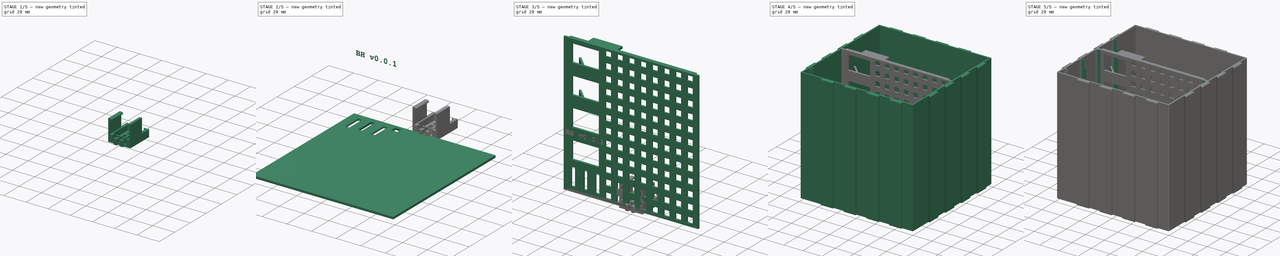
[diagram: build sequence overview — one tinted view per stage of 5, left to right]
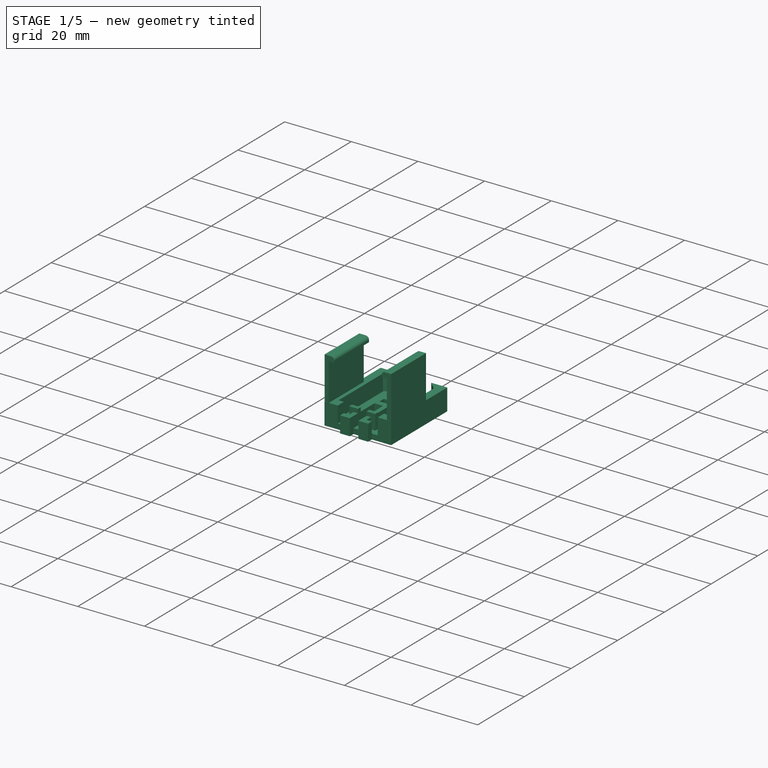
[diagram: stage 1 of 5 — iso view after this stage's code; geometry added in this stage tinted green]
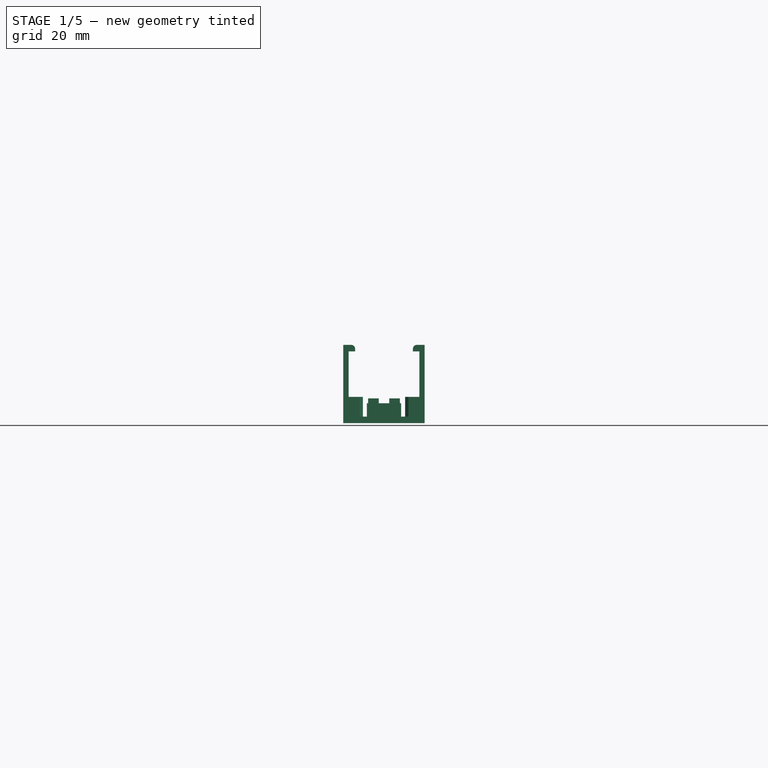
[diagram: stage 1 of 5 — front view after this stage's code; geometry added in this stage tinted green]
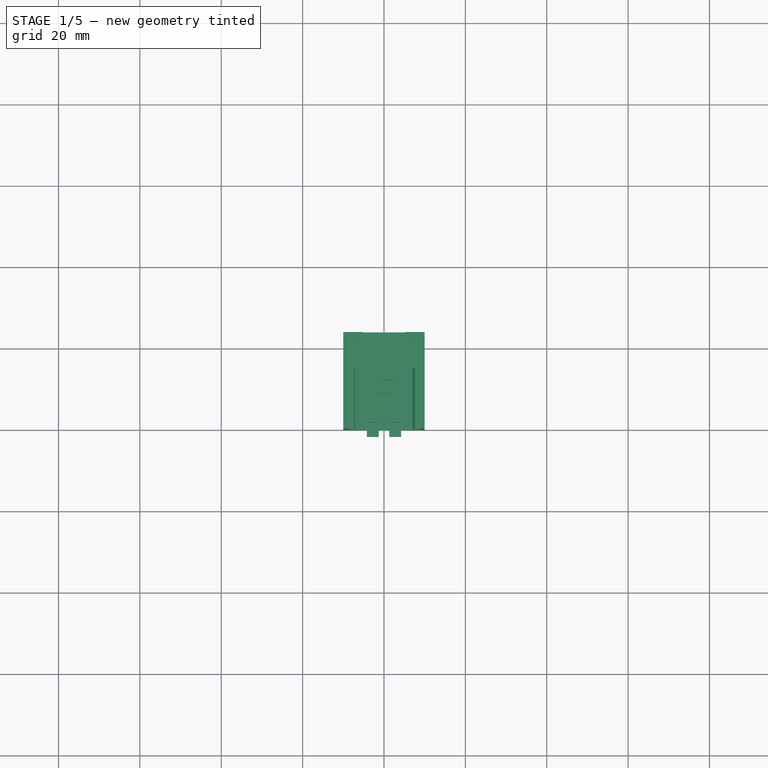
[diagram: stage 1 of 5 — top view after this stage's code; geometry added in this stage tinted green]
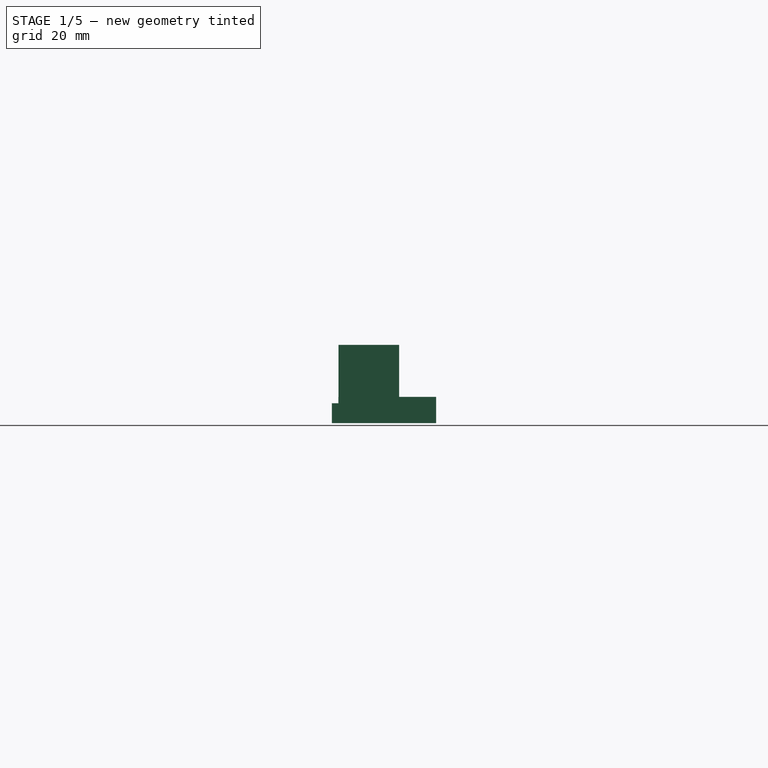
[diagram: stage 1 of 5 — right view after this stage's code; geometry added in this stage tinted green]
FCSTD DOCUMENT  (FreeCAD 0.20R29603 (Git))
Label: mbh
License: All rights reserved
LicenseURL: http://en.wikipedia.org/wiki/All_rights_reserved
objects: Sketcher::SketchObject×26, PartDesign::Pad×14, PartDesign::Pocket×12, PartDesign::Fillet×10, PartDesign::LinearPattern×9, PartDesign::Mirrored×8, PartDesign::Body×7, PartDesign::MultiTransform×5, Part::Part2DObjectPython×2, Part::Extrusion×2, Part::Cut×2, Spreadsheet::Sheet×1, PartDesign::PolarPattern×1, PartDesign::Plane×1, PartDesign::Chamfer×1, PartDesign::AdditiveBox×1, PartDesign::FeatureBase×1
note: 140 computed .brp shape members not serialized (recipe doc carries the construction recipe); baked Part::Feature solids carry a one-line shape summary decoded from their .brp

FEATURE [Sketcher::SketchObject] Sketch021  label="Sketch_usb_cap_base"
  FullyConstrained = true
  MapMode = 5
  Support = -> [XY_Plane003]
  expr: Constraints[11] = Spreadsheet001.top_usb_total_x - (Spreadsheet001.usb_top_clip_tol_x + Spreadsheet001.usb_top_clip_overhang_x + Spreadsheet001.usb_top_clip_deflection_x) * 2
  expr: Constraints[12] = Spreadsheet001.usb_case_big_y + Spreadsheet001.usb_case_transition_size_y + Spreadsheet001.usb_plug_gap_y
  sketch-geometry (5):
    g0: LineSegment StartX=-10 StartY=0 StartZ=0 EndX=10 EndY=0 EndZ=0
    g1: LineSegment StartX=10 StartY=0 StartZ=0 EndX=10 EndY=24.05 EndZ=0
    g2: LineSegment StartX=10 StartY=24.05 StartZ=0 EndX=-10 EndY=24.05 EndZ=0
    g3: LineSegment StartX=-10 StartY=24.05 StartZ=0 EndX=-10 EndY=0 EndZ=0
    g4: GeomPoint X=0 Y=0 Z=0
  constraints (13):
    c: Coincident(g0,g1)
    c: Coincident(g1,g2)
    c: Coincident(g2,g3)
    c: Coincident(g3,g0)
    c: Horizontal(g0)
    c: Horizontal(g2)
    c: Vertical(g1)
    c: Vertical(g3)
    c: PointOnObject(g0,g-1)
    c: Symmetric(g0,g0,g4)
    c: PointOnObject(g4,g-2)
    c: DistanceX(g0,g0) = 20
    c: DistanceY(g1,g1) = 24.05
FEATURE [PartDesign::Pad] Pad010  label="Pad_usb_cap_base"
  Direction = (0,0,1)
  Length = 6.46
  Length2 = 10
  Profile = -> Sketch021
  ReferenceAxis = -> Sketch021 [N_Axis]
  Type = 0
  expr: Length = Spreadsheet001.top_usb_clip_base_thickness + Spreadsheet001.usb_case_cutout_z
FEATURE [Sketcher::SketchObject] Sketch020  label="Sketch_usb_case_cutout"
  FullyConstrained = true
  MapMode = 5
  Placement = pos=(0,0,6.46) rot=(0,0,1;0rad)
  Support = -> [Pad010]
  expr: Constraints[11] = Spreadsheet001.usb_case_smaller_x
  expr: Constraints[12] = Spreadsheet001.usb_case_transition_size_y
  expr: Constraints[28] = Spreadsheet001.usb_case_x
  expr: Constraints[29] = (Spreadsheet001.usb_case_x - Spreadsheet001.usb_plug_x) / 2
  expr: Constraints[30] = Spreadsheet001.usb_plug_gap_y
  expr: Constraints[8] = Spreadsheet001.usb_case_big_y
  sketch-geometry (12):
    g0: LineSegment StartX=7.6 StartY=2.65 StartZ=0 EndX=7.6 EndY=21.65 EndZ=0
    g1: LineSegment StartX=7.6 StartY=21.65 StartZ=0 EndX=5.2 EndY=24.05 EndZ=0
    g2: LineSegment StartX=5.2 StartY=24.05 StartZ=0 EndX=-5.2 EndY=24.05 EndZ=0
    g3: LineSegment StartX=-5.2 StartY=24.05 StartZ=0 EndX=-7.6 EndY=21.65 EndZ=0
    g4: LineSegment StartX=-7.6 StartY=21.65 StartZ=0 EndX=-7.6 EndY=2.65 EndZ=0
    g5: GeomPoint X=0 Y=24.05 Z=0
    g6: LineSegment StartX=-7.6 StartY=2.65 StartZ=0 EndX=-6 EndY=2.65 EndZ=0
    g7: LineSegment StartX=-6 StartY=2.65 StartZ=0 EndX=-6 EndY=0 EndZ=0
    g8: LineSegment StartX=7.6 StartY=2.65 StartZ=0 EndX=6 EndY=2.65 EndZ=0
    g9: LineSegment StartX=6 StartY=2.65 StartZ=0 EndX=6 EndY=0 EndZ=0
    g10: LineSegment StartX=6 StartY=0 StartZ=0 EndX=-6 EndY=0 EndZ=0
    g11: GeomPoint X=0 Y=0 Z=0
  constraints (31):
    c: Vertical(g0)
    c: Horizontal(g2)
    c: Coincident(g4,g3)
    c: Vertical(g4)
    c: Symmetric(g2,g2,g5)
    c: PointOnObject(g5,g-2)
    c: Coincident(g0,g1)
    c: Equal(g0,g4)
    c: DistanceY(g0,g0) = 19
    c: Coincident(g2,g3)
    c: Coincident(g2,g1)
    c: DistanceX(g2,g2) = 10.4
    c: DistanceY(g0,g1) = 2.4
    c: Horizontal(g6)
    c: Coincident(g7,g6)
    c: Vertical(g7)
    c: Coincident(g6,g4)
    c: Coincident(g8,g0)
    c: Horizontal(g8)
    c: Coincident(g9,g8)
    c: Vertical(g9)
    c: Coincident(g10,g9)
    c: Horizontal(g10)
    c: Coincident(g10,g7)
    c: Equal(g9,g7)
    c: Equal(g6,g8)
    c: Symmetric(g10,g10,g11)
    c: Coincident(g11,g-1)
    c: DistanceX(g4,g0) = 15.2
    c: DistanceX(g6,g6) = 1.6
    c: DistanceY(g7,g7) = 2.65
FEATURE [PartDesign::Pocket] Pocket008  label="Pocket_usb_case_cutout"
  BaseFeature = -> Pad010
  Direction = (0,0,-1)
  Length = 4.86
  Length2 = 5
  Profile = -> Sketch020
  ReferenceAxis = -> Sketch020 [N_Axis]
  Type = 0
  expr: Length = Spreadsheet001.usb_case_cutout_z
FEATURE [Sketcher::SketchObject] Sketch022  label="Sketch_left_clip_extension"
  FullyConstrained = true
  MapMode = 5
  Support = -> [XY_Plane003]
  expr: Constraints[10] = Spreadsheet001.top_usb_clip_size_x - Spreadsheet001.usb_top_clip_tol_x
  expr: Constraints[11] = Spreadsheet001.top_usb_clip_size_y - Spreadsheet001.usb_top_clip_tol_y
  expr: Constraints[8] = Spreadsheet001.top_usb_total_x / 2 - (Spreadsheet001.usb_top_clip_tol_x + Spreadsheet001.usb_top_clip_overhang_x + Spreadsheet001.usb_top_clip_deflection_x)
  expr: Constraints[9] = Spreadsheet001.usb_top_clip_tol_y / 2
  sketch-geometry (4):
    g0: LineSegment StartX=-10 StartY=0.05 StartZ=0 EndX=-8.7 EndY=0.05 EndZ=0
    g1: LineSegment StartX=-8.7 StartY=0.05 StartZ=0 EndX=-8.7 EndY=14.95 EndZ=0
    g2: LineSegment StartX=-8.7 StartY=14.95 StartZ=0 EndX=-10 EndY=14.95 EndZ=0
    g3: LineSegment StartX=-10 StartY=14.95 StartZ=0 EndX=-10 EndY=0.05 EndZ=0
  constraints (12):
    c: Coincident(g0,g1)
    c: Coincident(g1,g2)
    c: Coincident(g2,g3)
    c: Coincident(g3,g0)
    c: Horizontal(g0)
    c: Horizontal(g2)
    c: Vertical(g1)
    c: Vertical(g3)
    c: DistanceX(g0,g-1) = 10
    c: DistanceY(g-1,g0) = 0.05
    c: DistanceX(g2,g2) = 1.3
    c: DistanceY(g3,g3) = 14.9
FEATURE [PartDesign::Pad] Pad011  label="Pad_left_clip_extension"
  BaseFeature = -> Pocket008
  Direction = (0,0,1)
  Length = 17.65
  Length2 = 10
  Profile = -> Sketch022
  ReferenceAxis = -> Sketch022 [N_Axis]
  Type = 0
  expr: Length = Spreadsheet001.slot_y_offset / 2 + Spreadsheet001.top_usb_clip_base_thickness + Spreadsheet001.usb_case_z / 2
FEATURE [Sketcher::SketchObject] Sketch023  label="Sketch_left_clip_overhang"
  FullyConstrained = true
  MapMode = 5
  Placement = pos=(0,0,17.65) rot=(0,0,1;0rad)
  Support = -> [Pad011]
  expr: Constraints[10] = Spreadsheet001.top_usb_clip_size_y - Spreadsheet001.usb_top_clip_tol_y
  expr: Constraints[11] = Spreadsheet001.top_usb_clip_size_x + Spreadsheet001.usb_top_clip_overhang_x - Spreadsheet001.usb_top_clip_tol_x
  expr: Constraints[8] = Spreadsheet001.top_usb_total_x / 2 - (Spreadsheet001.usb_top_clip_tol_x + Spreadsheet001.usb_top_clip_overhang_x + Spreadsheet001.usb_top_clip_deflection_x)
  expr: Constraints[9] = Spreadsheet001.usb_top_clip_tol_y / 2
  sketch-geometry (4):
    g0: LineSegment StartX=-10 StartY=0.05 StartZ=0 EndX=-7.1 EndY=0.05 EndZ=0
    g1: LineSegment StartX=-7.1 StartY=0.05 StartZ=0 EndX=-7.1 EndY=14.95 EndZ=0
    g2: LineSegment StartX=-7.1 StartY=14.95 StartZ=0 EndX=-10 EndY=14.95 EndZ=0
    g3: LineSegment StartX=-10 StartY=14.95 StartZ=0 EndX=-10 EndY=0.05 EndZ=0
  constraints (12):
    c: Coincident(g0,g1)
    c: Coincident(g1,g2)
    c: Coincident(g2,g3)
    c: Coincident(g3,g0)
    c: Horizontal(g0)
    c: Horizontal(g2)
    c: Vertical(g1)
    c: Vertical(g3)
    c: DistanceX(g0,g-1) = 10
    c: DistanceY(g-1,g0) = 0.05
    c: DistanceY(g3,g3) = 14.9
    c: DistanceX(g2,g2) = 2.9
FEATURE [PartDesign::Pad] Pad012  label="Pad_left_clip_overhang"
  BaseFeature = -> Pad011
  Direction = (0,0,1)
  Length = 1.6
  Length2 = 10
  Profile = -> Sketch023
  ReferenceAxis = -> Sketch023 [N_Axis]
  Type = 0
  expr: Length = Spreadsheet001.usb_top_clip_overhang_z
FEATURE [PartDesign::Mirrored] Mirrored004  label="Mirrored_clip"
  BaseFeature = -> Pad012
  MirrorPlane = -> Sketch022 [V_Axis]
  Originals = -> [Pad011,Pad012]
FEATURE [Sketcher::SketchObject] Sketch030  label="Sketch_right_base_clip"
  FullyConstrained = true
  MapMode = 5
  Support = -> [XY_Plane004]
  expr: Constraints[16] = Spreadsheet001.usb_top_clip_overhang_z
  expr: Constraints[18] = Spreadsheet001.usb_top_clip_overhang_x
  expr: Constraints[20] = Spreadsheet001.board_holder_grid / 2 + Spreadsheet001.usb_top_clip_deflection_x
  expr: Constraints[21] = Spreadsheet001.usb_top_clip_overhang_z + Spreadsheet001.pcb_standoff_z
  expr: Constraints[22] = Spreadsheet001.top_usb_clip_size_x + Spreadsheet001.usb_top_clip_overhang_x - Spreadsheet001.usb_top_clip_tol_x
  expr: Constraints[23] = Spreadsheet001.pcb_board_z * 3
  sketch-geometry (8):
    g0: LineSegment StartX=0 StartY=9 StartZ=0 EndX=0 EndY=13.8 EndZ=0
    g1: LineSegment StartX=0 StartY=13.8 StartZ=0 EndX=2.6 EndY=13.8 EndZ=0
    g2: LineSegment StartX=2.6 StartY=13.8 StartZ=0 EndX=2.6 EndY=0 EndZ=0
    g3: LineSegment StartX=2.6 StartY=0 StartZ=0 EndX=4.2 EndY=0 EndZ=0
    g4: LineSegment StartX=4.2 StartY=0 StartZ=0 EndX=4.2 EndY=-1.6 EndZ=0
    g5: LineSegment StartX=4.2 StartY=-1.6 StartZ=0 EndX=1.3 EndY=-1.6 EndZ=0
    g6: LineSegment StartX=1.3 StartY=-1.6 StartZ=0 EndX=1.3 EndY=9 EndZ=0
    g7: LineSegment StartX=1.3 StartY=9 StartZ=0 EndX=0 EndY=9 EndZ=0
  constraints (24):
    c: PointOnObject(g0,g-2)
    c: Vertical(g0)
    c: Coincident(g1,g0)
    c: Horizontal(g1)
    c: Vertical(g2)
    c: PointOnObject(g3,g-1)
    c: Horizontal(g3)
    c: Coincident(g4,g3)
    c: Vertical(g4)
    c: Coincident(g5,g4)
    c: Horizontal(g5)
    c: Vertical(g6)
    c: Coincident(g7,g0)
    c: Horizontal(g7)
    c: Coincident(g6,g7)
    c: Coincident(g6,g5)
    c: DistanceY(g4,g4) = 1.6
    c: Coincident(g3,g2)
    c: DistanceX(g3,g3) = 1.6
    c: Coincident(g2,g1)
    c: DistanceX(g1,g1) = 2.6
    c: DistanceY(g6,g6) = 10.6
    c: DistanceX(g5,g5) = 2.9
    c: DistanceY(g0,g0) = 4.8
FEATURE [PartDesign::Pad] Pad016  label="Pad_right_base_clip"
  Direction = (0,0,1)
  Length = 4.9
  Length2 = 10
  Profile = -> Sketch030
  ReferenceAxis = -> Sketch030 [N_Axis]
  Type = 0
  expr: Length = Spreadsheet001.board_holder_grid - Spreadsheet001.usb_top_clip_tol_y
FEATURE [PartDesign::Mirrored] Mirrored006  label="Mirrored_base_clip"
  BaseFeature = -> Pad016
  MirrorPlane = -> Sketch030 [V_Axis]
  Originals = -> [Pad016]
FEATURE [Sketcher::SketchObject] Sketch032  label="Sketch_blocker"
  FullyConstrained = true
  MapMode = 5
  Support = -> [XY_Plane004]
  expr: Constraints[10] = Spreadsheet001.base_board_z + Spreadsheet001.usb_top_clip_tol_y
  expr: Constraints[8] = Spreadsheet001.board_holder_grid / 2 + Spreadsheet001.usb_top_clip_deflection_x - Spreadsheet001.top_usb_clip_size_x + Spreadsheet001.usb_top_clip_tol_x
  expr: Constraints[9] = Spreadsheet001.top_usb_clip_size_x + 1mm
  sketch-geometry (4):
    g0: LineSegment StartX=1.3 StartY=3.1 StartZ=0 EndX=3.9 EndY=3.1 EndZ=0
    g1: LineSegment StartX=3.9 StartY=3.1 StartZ=0 EndX=3.9 EndY=1.9 EndZ=0
    g2: LineSegment StartX=3.9 StartY=1.9 StartZ=0 EndX=1.3 EndY=1.9 EndZ=0
    g3: LineSegment StartX=1.3 StartY=1.9 StartZ=0 EndX=1.3 EndY=3.1 EndZ=0
  constraints (12):
    c: Coincident(g0,g1)
    c: Coincident(g1,g2)
    c: Coincident(g2,g3)
    c: Coincident(g3,g0)
    c: Horizontal(g0)
    c: Horizontal(g2)
    c: Vertical(g1)
    c: Vertical(g3)
    c: DistanceX(g-1,g0) = 1.3
    c: DistanceX(g0,g0) = 2.6
    c: DistanceY(g-1,g2) = 1.9
    c: DistanceY(g1,g1) = 1.2
FEATURE [PartDesign::Pad] Pad017  label="Pad_blocker"
  BaseFeature = -> Mirrored006
  Direction = (0,0,1)
  Length = 6.1
  Length2 = 10
  Profile = -> Sketch032
  ReferenceAxis = -> Sketch032 [N_Axis]
  Type = 0
  expr: Length = Spreadsheet001.board_holder_grid - Spreadsheet001.usb_top_clip_tol_y + 1.2mm
FEATURE [PartDesign::Mirrored] Mirrored007  label="Mirrored_blocker"
  BaseFeature = -> Pad017
  MirrorPlane = -> Sketch032 [V_Axis]
  Originals = -> [Pad017]
FEATURE [Sketcher::SketchObject] Sketch031  label="Sketch_cutout"
  FullyConstrained = true
  MapMode = 5
  Placement = pos=(0,0,4.9) rot=(0,0,1;0rad)
  Support = -> [Mirrored007]
  expr: Constraints[10] = Spreadsheet001.board_holder_grid / 2 - Spreadsheet001.pcb_board_z
  expr: Constraints[11] = Spreadsheet001.pcb_standoff_z + Spreadsheet001.pcb_board_z
  expr: Constraints[8] = Spreadsheet001.pcb_board_z + 0.2mm
  expr: Constraints[9] = Spreadsheet001.board_holder_grid - Spreadsheet001.pcb_board_z + Spreadsheet001.usb_top_clip_deflection_x
  sketch-geometry (4):
    g0: LineSegment StartX=2.6 StartY=12.4 StartZ=0 EndX=-0.9 EndY=12.4 EndZ=0
    g1: LineSegment StartX=-0.9 StartY=12.4 StartZ=0 EndX=-0.9 EndY=10.6 EndZ=0
    g2: LineSegment StartX=-0.9 StartY=10.6 StartZ=0 EndX=2.6 EndY=10.6 EndZ=0
    g3: LineSegment StartX=2.6 StartY=10.6 StartZ=0 EndX=2.6 EndY=12.4 EndZ=0
  constraints (12):
    c: Coincident(g0,g1)
    c: Coincident(g1,g2)
    c: Coincident(g2,g3)
    c: Coincident(g3,g0)
    c: Horizontal(g0)
    c: Horizontal(g2)
    c: Vertical(g1)
    c: Vertical(g3)
    c: DistanceY(g3,g3) = 1.8
    c: DistanceX(g0,g0) = 3.5
    c: DistanceX(g1,g-1) = 0.9
    c: DistanceY(g-1,g1) = 10.6
FEATURE [PartDesign::Pocket] Pocket013  label="Pocket_cutout"
  BaseFeature = -> Mirrored007
  Direction = (0,0,-1)
  Length = 3.4
  Length2 = 5
  Profile = -> Sketch031
  ReferenceAxis = -> Sketch031 [N_Axis]
  Type = 0
  expr: Length = Spreadsheet001.board_holder_grid - Spreadsheet001.pcb_board_z
FEATURE [PartDesign::Body] Body008  label="sbc"
  Group = -> [Clone,Sketch040,Pocket016]
  Origin = -> Origin008
  Tip = -> Pocket016
FEATURE [PartDesign::Fillet] Fillet017  label="Fillet_uc_bottom_clip"
  Base = -> Mirrored004 [Edge11,Edge104]
  BaseFeature = -> Mirrored004
  Radius = 1
  SupportTransform = false
  UseAllEdges = false
FEATURE [PartDesign::Body] Body003  label="uc_template"
  Group = -> [Sketch021,Sketch020,Pad010,Pocket008,Sketch022,Sketch023,Pad011,Pad012,Mirrored004,Fillet017]
  Origin = -> Origin003
  Placement = pos=(-39,17.65,5.75) rot=(1,0,0;1.5708rad)
  Tip = -> Fillet017
  expr: .Placement.Base.x = -Spreadsheet001.center_of_left_usb_x
  expr: .Placement.Base.y = Spreadsheet001.slot_y_offset / 2 + Spreadsheet001.usb_case_z / 2 + Spreadsheet001.top_usb_clip_base_thickness
  expr: .Placement.Base.z = Spreadsheet001.back_thickness + Spreadsheet001.usb_female_insert_y
note: 2 file-system paths scrubbed to <path> (originals preserved in the JSON sidecar)
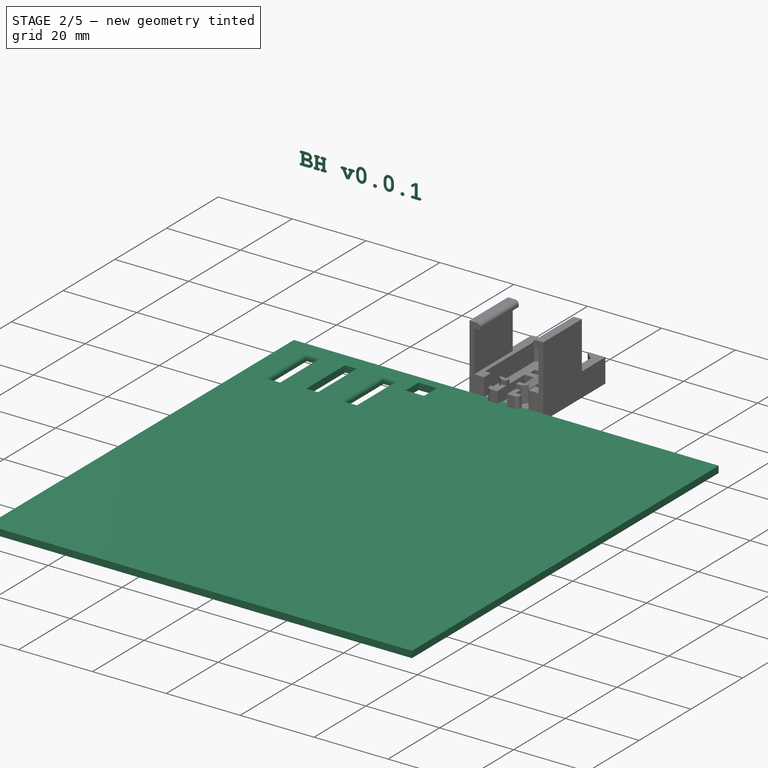
[diagram: stage 2 of 5 — iso view after this stage's code; geometry added in this stage tinted green]
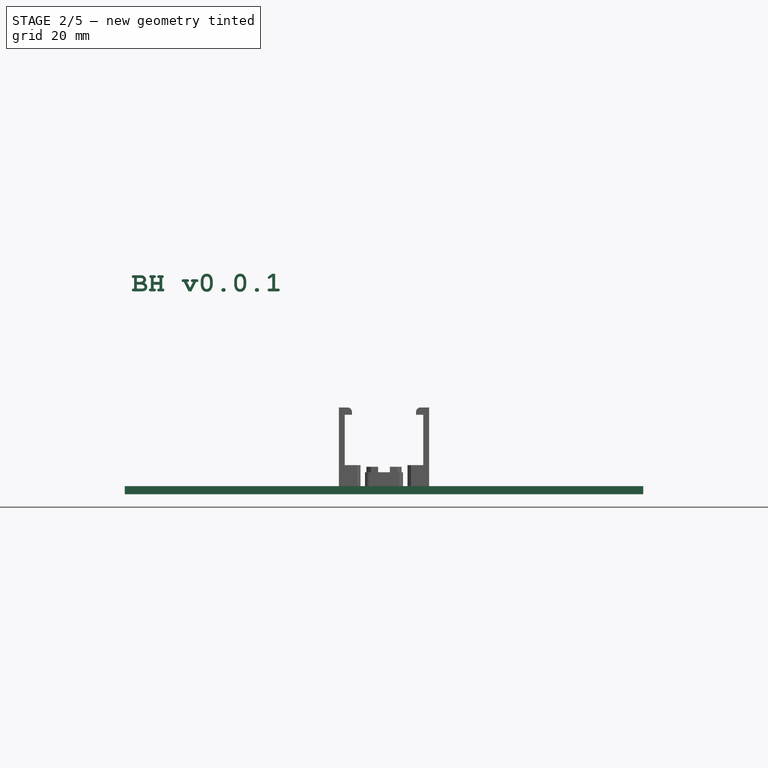
[diagram: stage 2 of 5 — front view after this stage's code; geometry added in this stage tinted green]
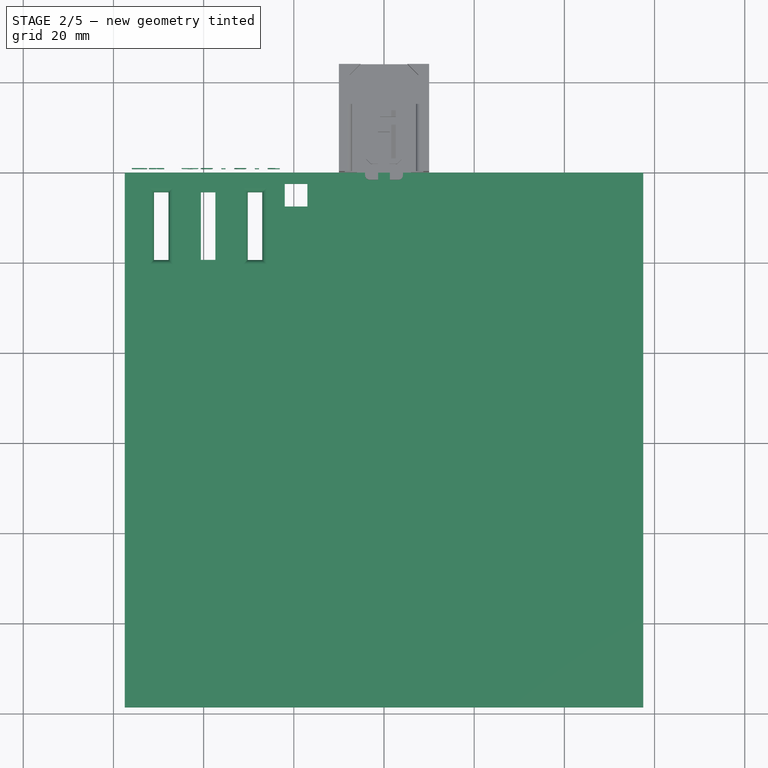
[diagram: stage 2 of 5 — top view after this stage's code; geometry added in this stage tinted green]
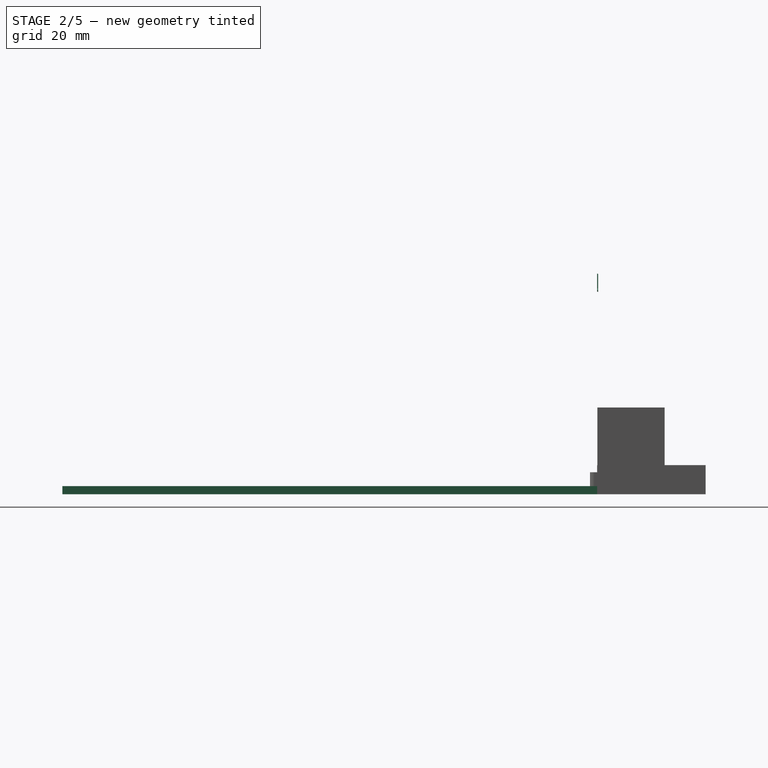
[diagram: stage 2 of 5 — right view after this stage's code; geometry added in this stage tinted green]
FEATURE [Sketcher::SketchObject] Sketch  label="Sketch_base_board"
  FullyConstrained = true
  MapMode = 5
  Support = -> [XY_Plane]
  expr: Constraints[10] = Spreadsheet001.base_board_y
  expr: Constraints[9] = Spreadsheet001.base_board_x
  sketch-geometry (4):
    g0: LineSegment StartX=-57.5 StartY=0 StartZ=0 EndX=57.5 EndY=0 EndZ=0
    g1: LineSegment StartX=57.5 StartY=0 StartZ=0 EndX=57.5 EndY=-118.6 EndZ=0
    g2: LineSegment StartX=57.5 StartY=-118.6 StartZ=0 EndX=-57.5 EndY=-118.6 EndZ=0
    g3: LineSegment StartX=-57.5 StartY=-118.6 StartZ=0 EndX=-57.5 EndY=0 EndZ=0
  constraints (11):
    c: Coincident(g0,g1)
    c: Coincident(g1,g2)
    c: Coincident(g2,g3)
    c: Coincident(g3,g0)
    c: Horizontal(g0)
    c: Horizontal(g2)
    c: Vertical(g1)
    c: Vertical(g3)
    c: Symmetric(g0,g0,g-1)
    c: DistanceX(g0,g0) = 115
    c: DistanceY(g3,g3) = 118.6
FEATURE [PartDesign::Pad] Pad  label="Pad_base_board"
  Direction = (0,0,1)
  Length = 1.8
  Length2 = 10
  Profile = -> Sketch
  ReferenceAxis = -> Sketch [N_Axis]
  Type = 0
  expr: Length = Spreadsheet001.base_board_z
FEATURE [PartDesign::Plane] DatumPlane  label="DatumPlane_center_usb"
  AttachmentOffset = pos=(0,-39,0) rot=(1,0,0;1.5708rad)
  Length = 66.947
  MapMode = 4
  Placement = pos=(-39,2.2e-15,-2.2e-15) rot=(0,1,0;4.71239rad)
  ResizeMode = 0
  Support = -> [YZ_Plane]
  Width = 160.547
  expr: .AttachmentOffset.Base.y = -Spreadsheet001.center_of_left_usb_x
FEATURE [Sketcher::SketchObject] Sketch018  label="Sketch_usb_top_case_cutout_left"
  FullyConstrained = true
  MapMode = 5
  Support = -> [XY_Plane]
  expr: Constraints[10] = Spreadsheet001.top_usb_clip_size_x + Spreadsheet001.usb_top_clip_overhang_x
  expr: Constraints[11] = Spreadsheet001.center_of_left_usb_x + Spreadsheet001.top_usb_total_x / 2
  expr: Constraints[8] = Spreadsheet001.usb_female_insert_y
  expr: Constraints[9] = Spreadsheet001.top_usb_clip_size_y
  sketch-geometry (4):
    g0: LineSegment StartX=-51 StartY=-4.35 StartZ=0 EndX=-47.8 EndY=-4.35 EndZ=0
    g1: LineSegment StartX=-47.8 StartY=-4.35 StartZ=0 EndX=-47.8 EndY=-19.35 EndZ=0
    g2: LineSegment StartX=-47.8 StartY=-19.35 StartZ=0 EndX=-51 EndY=-19.35 EndZ=0
    g3: LineSegment StartX=-51 StartY=-19.35 StartZ=0 EndX=-51 EndY=-4.35 EndZ=0
  constraints (12):
    c: Coincident(g0,g1)
    c: Coincident(g1,g2)
    c: Coincident(g2,g3)
    c: Coincident(g3,g0)
    c: Horizontal(g0)
    c: Horizontal(g2)
    c: Vertical(g1)
    c: Vertical(g3)
    c: DistanceY(g0,g-1) = 4.35
    c: DistanceY(g1,g1) = 15
    c: DistanceX(g2,g2) = 3.2
    c: DistanceX(g0,g-1) = 51
FEATURE [PartDesign::Pocket] Pocket  label="Pocket_usb_top_case_cutout_left"
  BaseFeature = -> Pad
  Direction = (0,0,-1)
  Length = 5
  Length2 = 5
  Profile = -> Sketch018
  ReferenceAxis = -> Sketch018 [N_Axis]
  Reversed = true
  Type = 1
FEATURE [PartDesign::Mirrored] Mirrored003  label="Mirrored_usb_top_case_cutout"
  BaseFeature = -> Pocket
  MirrorPlane = -> DatumPlane
  Originals = -> [Pocket]
FEATURE [PartDesign::Fillet] Fillet  label="Fillet_usb_top_case_cutout"
  Base = -> Mirrored003 [Edge27,Edge25,Edge26,Edge28,Edge21,Edge24,Edge23,Edge22]
  BaseFeature = -> Mirrored003
  Radius = 1
  SupportTransform = false
  UseAllEdges = false
FEATURE [Sketcher::SketchObject] Sketch026  label="Sketch_spring_holder"
  FullyConstrained = true
  MapMode = 5
  Support = -> [XY_Plane]
  expr: Constraints[10] = Spreadsheet001.top_usb_clip_size_x + Spreadsheet001.usb_top_clip_overhang_x
  expr: Constraints[11] = Spreadsheet001.top_usb_clip_size_y
  expr: Constraints[12] = Spreadsheet001.usb_female_insert_y
  expr: Constraints[9] = Spreadsheet001.center_of_left_usb_x
  sketch-geometry (5):
    g0: LineSegment StartX=-40.6 StartY=-4.35 StartZ=0 EndX=-37.4 EndY=-4.35 EndZ=0
    g1: LineSegment StartX=-37.4 StartY=-4.35 StartZ=0 EndX=-37.4 EndY=-19.35 EndZ=0
    g2: LineSegment StartX=-37.4 StartY=-19.35 StartZ=0 EndX=-40.6 EndY=-19.35 EndZ=0
    g3: LineSegment StartX=-40.6 StartY=-19.35 StartZ=0 EndX=-40.6 EndY=-4.35 EndZ=0
    g4: GeomPoint X=-39 Y=-4.35 Z=0
  constraints (13):
    c: Coincident(g0,g1)
    c: Coincident(g1,g2)
    c: Coincident(g2,g3)
    c: Coincident(g3,g0)
    c: Horizontal(g0)
    c: Horizontal(g2)
    c: Vertical(g1)
    c: Vertical(g3)
    c: Symmetric(g0,g0,g4)
    c: DistanceX(g4,g-1) = 39
    c: DistanceX(g0,g0) = 3.2
    c: DistanceY(g1,g1) = 15
    c: DistanceY(g4,g-1) = 4.35
FEATURE [PartDesign::Pocket] Pocket009  label="Pocket_spring_holder"
  BaseFeature = -> Fillet
  Direction = (0,0,-1)
  Length = 5
  Length2 = 5
  Profile = -> Sketch026
  ReferenceAxis = -> Sketch026 [N_Axis]
  Reversed = true
  Type = 1
FEATURE [Sketcher::SketchObject] Sketch027  label="Sketch_upperleft_board_grid"
  FullyConstrained = true
  MapMode = 5
  Support = -> [XY_Plane]
  expr: Constraints[10] = Spreadsheet001.board_holder_grid / 2
  expr: Constraints[11] = Spreadsheet001.center_of_left_usb_x - Spreadsheet001.board_holder_grid / 2 - Spreadsheet001.usb_total_x / 2
  expr: Constraints[9] = Spreadsheet001.board_holder_grid
  sketch-geometry (4):
    g0: LineSegment StartX=-17 StartY=-2.5 StartZ=0 EndX=-22 EndY=-2.5 EndZ=0
    g1: LineSegment StartX=-22 StartY=-2.5 StartZ=0 EndX=-22 EndY=-7.5 EndZ=0
    g2: LineSegment StartX=-22 StartY=-7.5 StartZ=0 EndX=-17 EndY=-7.5 EndZ=0
    g3: LineSegment StartX=-17 StartY=-7.5 StartZ=0 EndX=-17 EndY=-2.5 EndZ=0
  constraints (12):
    c: Coincident(g0,g1)
    c: Coincident(g1,g2)
    c: Coincident(g2,g3)
    c: Coincident(g3,g0)
    c: Horizontal(g0)
    c: Horizontal(g2)
    c: Vertical(g1)
    c: Vertical(g3)
    c: Equal(g0,g1)
    c: DistanceY(g1,g1) = 5
    c: DistanceY(g0,g-1) = 2.5
    c: DistanceX(g0,g-1) = 22
FEATURE [PartDesign::Pocket] Pocket010  label="Pocket_upperleft_board_grid"
  BaseFeature = -> Pocket009
  Direction = (0,0,-1)
  Length = 5
  Length2 = 5
  Profile = -> Sketch027
  ReferenceAxis = -> Sketch027 [N_Axis]
  Reversed = true
  Type = 1
FEATURE [PartDesign::Chamfer] Chamfer  label="Chamfer_corner_holder"
  Angle = 45
  Base = -> Pocket013 [Edge78,Edge64,Edge10,Edge14]
  BaseFeature = -> Pocket013
  ChamferType = 0
  FlipDirection = false
  Size = 1
  Size2 = 1
  SupportTransform = false
  UseAllEdges = false
FEATURE [PartDesign::Fillet] Fillet010  label="Fillet_corner_holder_clip"
  Base = -> Chamfer [Edge101,Edge119]
  BaseFeature = -> Chamfer
  Radius = 1
  SupportTransform = false
  UseAllEdges = false
FEATURE [Part::Part2DObjectPython] ShapeString001  label="ShapeString_inet_bh_ver"  # Draft 2D object (typed FeaturePython)
  FontFile = <path>
  MakeFace = true
  MapMode = 2
  Placement = pos=(0,0,0) rot=(1,0,0;3.14159rad)
  Size = 2
  String = BH v0.0.1
  Tracking = 0
FEATURE [PartDesign::Body] Body  label="base_board"
  Group = -> [Sketch,Pad,DatumPlane,Sketch018,Pocket,Mirrored003,Fillet,Sketch026,Pocket009,Sketch027,Pocket010,Fillet008,MultiTransform,LinearPattern,LinearPattern011,Sketch028,Pad014,Sketch029,Pad015,Sketch036,Pad020,Sketch037,LinearPattern012,Pocket014,LinearPattern013,Sketch038,Pad021,LinearPattern014,Fillet015,ShapeString001]
  Origin = -> Origin
  Placement = pos=(0,0,1.4) rot=(-1,0,0;1.5708rad)
  Tip = -> Fillet015
  expr: .Placement.Base.z = Spreadsheet001.back_thickness
FEATURE [Part::Extrusion] Extrude001  label="Extrude_inet_bh_ver"
  Base = -> ShapeString001
  Dir = (0,-1e-16,-1)
  DirMode = 2
  FaceMakerClass = Part::FaceMakerBullseye
  LengthFwd = 0
  LengthRev = 0.2
  Placement = pos=(-56,0,45) rot=(-1,0,0;1.5708rad)
  Solid = false
  Symmetric = false
FEATURE [PartDesign::Body] Body007  label="somehow_XY_plane_needs_this"
  Origin = -> Origin007
  Placement = pos=(-19.5,0,3.95) rot=(0,0,1;0rad)
  expr: .Placement.Base.x = -(Spreadsheet001.center_of_left_usb_x - Spreadsheet001.board_holder_grid / 2 - Spreadsheet001.usb_total_x / 2) + Spreadsheet001.board_holder_grid / 2
  expr: .Placement.Base.z = Spreadsheet001.back_thickness + Spreadsheet001.board_holder_grid / 2 + Spreadsheet001.usb_top_clip_tol_y / 2
FEATURE [PartDesign::FeatureBase] Clone
  BaseFeature = -> Body004
FEATURE [Sketcher::SketchObject] Sketch040  label="Sketch_cutout_sbc"
  FullyConstrained = true
  MapMode = 5
  Placement = pos=(0,0,4.9) rot=(0,0,1;0rad)
  Support = -> [Fillet010]
  expr: Constraints[10] = Spreadsheet001.board_holder_grid / 2 - Spreadsheet001.pcb_board_z
  expr: Constraints[11] = Spreadsheet001.pcb_standoff_z + Spreadsheet001.pcb_board_z
  expr: Constraints[8] = Spreadsheet001.pcb_board_z + 0.2mm
  expr: Constraints[9] = Spreadsheet001.board_holder_grid - Spreadsheet001.pcb_board_z + Spreadsheet001.usb_top_clip_deflection_x
  sketch-geometry (4):
    g0: LineSegment StartX=2.6 StartY=12.4 StartZ=0 EndX=-0.9 EndY=12.4 EndZ=0
    g1: LineSegment StartX=-0.9 StartY=12.4 StartZ=0 EndX=-0.9 EndY=10.6 EndZ=0
    g2: LineSegment StartX=-0.9 StartY=10.6 StartZ=0 EndX=2.6 EndY=10.6 EndZ=0
    g3: LineSegment StartX=2.6 StartY=10.6 StartZ=0 EndX=2.6 EndY=12.4 EndZ=0
  constraints (12):
    c: Coincident(g0,g1)
    c: Coincident(g1,g2)
    c: Coincident(g2,g3)
    c: Coincident(g3,g0)
    c: Horizontal(g0)
    c: Horizontal(g2)
    c: Vertical(g1)
    c: Vertical(g3)
    c: DistanceY(g3,g3) = 1.8
    c: DistanceX(g0,g0) = 3.5
    c: DistanceX(g1,g-1) = 0.9
    c: DistanceY(g-1,g1) = 10.6
FEATURE [PartDesign::Pocket] Pocket016  label="Pocket_cutout_sbc"
  BaseFeature = -> Clone
  Direction = (0,0,-1)
  Length = 5
  Length2 = 5
  Profile = -> Sketch040
  ReferenceAxis = -> Sketch040 [N_Axis]
  Type = 1
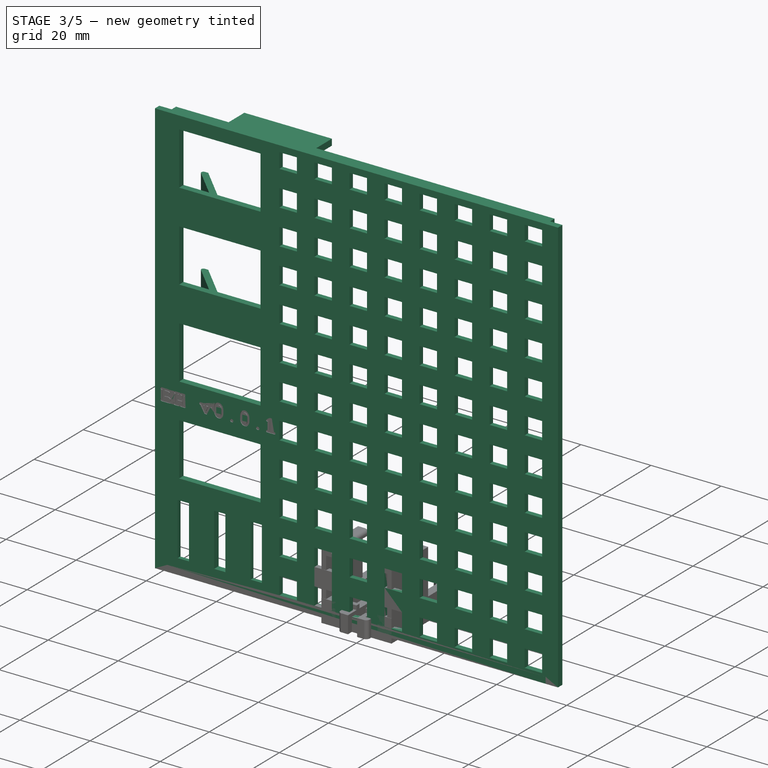
[diagram: stage 3 of 5 — iso view after this stage's code; geometry added in this stage tinted green]
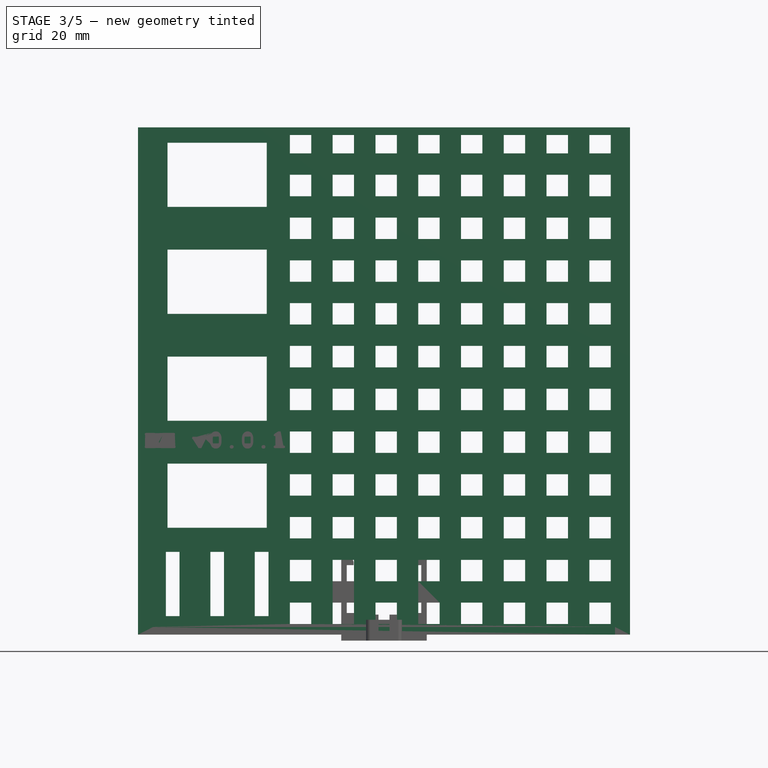
[diagram: stage 3 of 5 — front view after this stage's code; geometry added in this stage tinted green]
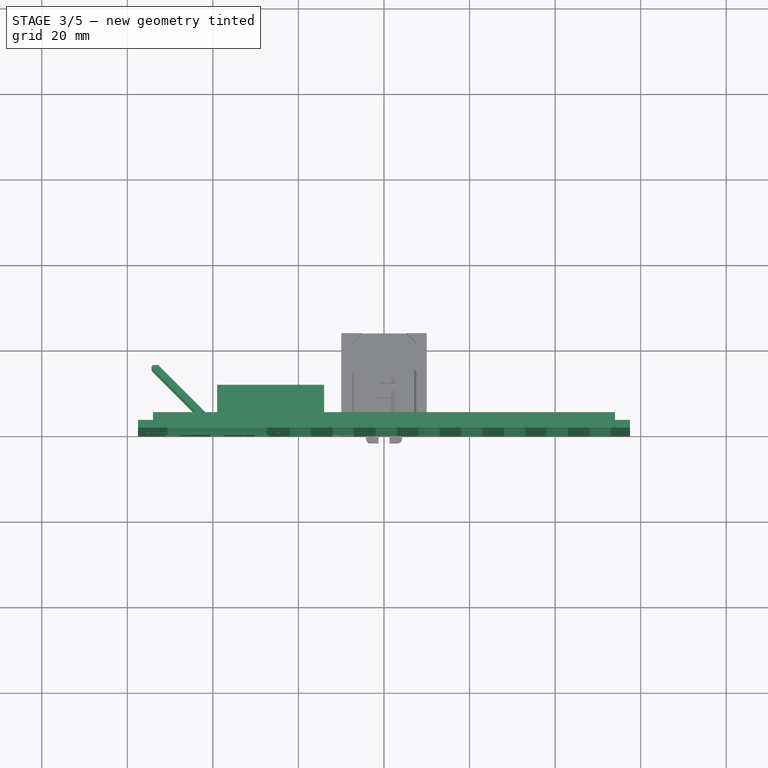
[diagram: stage 3 of 5 — top view after this stage's code; geometry added in this stage tinted green]
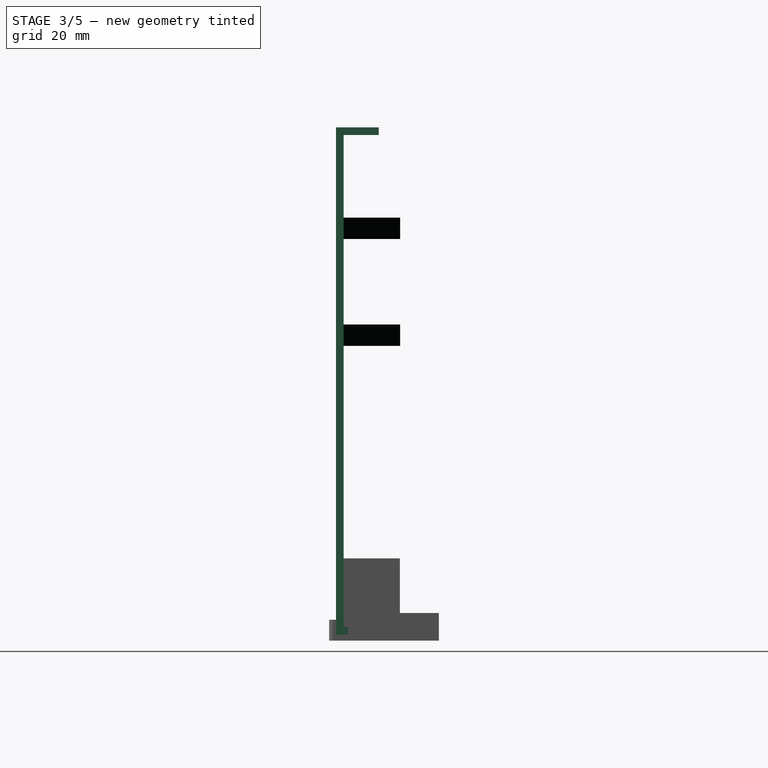
[diagram: stage 3 of 5 — right view after this stage's code; geometry added in this stage tinted green]
FEATURE [PartDesign::Fillet] Fillet008  label="Fillet_upperleft_board_grid"
  Base = -> Pocket010 [Edge20,Edge19,Edge18,Edge17]
  BaseFeature = -> Pocket010
  Radius = 0.6
  SupportTransform = false
  UseAllEdges = false
FEATURE [PartDesign::LinearPattern] LinearPattern
  Direction = -> X_Axis
  Length = 70
  Occurrences = 8
  expr: Length = Spreadsheet001.board_holder_grid * 2 * (Spreadsheet001.board_grid_x_count - 1)
  expr: Occurrences = Spreadsheet001.board_grid_x_count
FEATURE [PartDesign::LinearPattern] LinearPattern011
  Direction = -> Y_Axis
  Length = 110
  Occurrences = 12
  Reversed = true
  expr: Length = Spreadsheet001.board_holder_grid * 2 * (Spreadsheet001.board_grid_y_count - 1)
  expr: Occurrences = Spreadsheet001.board_grid_y_count
FEATURE [PartDesign::MultiTransform] MultiTransform  label="MultiTransform_board_grid"
  BaseFeature = -> Fillet008
  Originals = -> [Fillet008,Pocket010]
  Transformations = -> [LinearPattern,LinearPattern011]
FEATURE [Sketcher::SketchObject] Sketch028  label="Sketch_front_bar"
  FullyConstrained = true
  MapMode = 5
  Support = -> [XY_Plane]
  expr: Constraints[10] = Spreadsheet001.base_board_z
  expr: Constraints[9] = Spreadsheet001.total_inner_size_x - Spreadsheet001.board_side_supports * 2 - 1mm
  sketch-geometry (4):
    g0: LineSegment StartX=-54 StartY=0 StartZ=0 EndX=54 EndY=0 EndZ=0
    g1: LineSegment StartX=54 StartY=0 StartZ=0 EndX=54 EndY=-1.8 EndZ=0
    g2: LineSegment StartX=54 StartY=-1.8 StartZ=0 EndX=-54 EndY=-1.8 EndZ=0
    g3: LineSegment StartX=-54 StartY=-1.8 StartZ=0 EndX=-54 EndY=0 EndZ=0
  constraints (11):
    c: Coincident(g0,g1)
    c: Coincident(g1,g2)
    c: Coincident(g2,g3)
    c: Coincident(g3,g0)
    c: Horizontal(g0)
    c: Horizontal(g2)
    c: Vertical(g1)
    c: Vertical(g3)
    c: Symmetric(g0,g0,g-1)
    c: DistanceX(g0,g0) = 108
    c: DistanceY(g1,g1) = 1.8
FEATURE [PartDesign::Pad] Pad014  label="Pad_front_bar"
  BaseFeature = -> MultiTransform
  Direction = (0,0,1)
  Length = 2.8
  Length2 = 10
  Profile = -> Sketch028
  ReferenceAxis = -> Sketch028 [N_Axis]
  Type = 0
  expr: Length = Spreadsheet001.base_board_z + 1mm
FEATURE [Sketcher::SketchObject] Sketch029  label="Sketch_back_bar"
  FullyConstrained = true
  MapMode = 5
  Support = -> [XY_Plane]
  expr: Constraints[10] = Spreadsheet001.total_inner_size_x - Spreadsheet001.board_side_supports * 2 - 1mm
  expr: Constraints[11] = Spreadsheet001.base_board_z
  expr: Constraints[12] = Spreadsheet001.total_z - Spreadsheet001.back_thickness
  sketch-geometry (5):
    g0: LineSegment StartX=54 StartY=-118.6 StartZ=0 EndX=54 EndY=-116.8 EndZ=0
    g1: LineSegment StartX=54 StartY=-116.8 StartZ=0 EndX=-54 EndY=-116.8 EndZ=0
    g2: LineSegment StartX=-54 StartY=-116.8 StartZ=0 EndX=-54 EndY=-118.6 EndZ=0
    g3: LineSegment StartX=-54 StartY=-118.6 StartZ=0 EndX=54 EndY=-118.6 EndZ=0
    g4: GeomPoint X=0 Y=-117.7 Z=0
  constraints (13):
    c: Coincident(g0,g1)
    c: Coincident(g1,g2)
    c: Coincident(g2,g3)
    c: Coincident(g3,g0)
    c: Horizontal(g1)
    c: Horizontal(g3)
    c: Vertical(g0)
    c: Vertical(g2)
    c: Symmetric(g1,g0,g4)
    c: PointOnObject(g4,g-2)
    c: DistanceX(g1,g1) = 108
    c: DistanceY(g2,g2) = 1.8
    c: DistanceY(g2,g-1) = 118.6
FEATURE [PartDesign::Pad] Pad015  label="Pad_back_bar"
  BaseFeature = -> Pad014
  Direction = (0,0,1)
  Length = 3.6
  Length2 = 10
  Profile = -> Sketch029
  ReferenceAxis = -> Sketch029 [N_Axis]
  Type = 0
  expr: Length = Spreadsheet001.base_board_z * 2
FEATURE [PartDesign::Body] Body002  label="usb_bunny_ears"
  Group = -> [Sketch025,Pad013,Mirrored005,Fillet007,Box003,Fillet011]
  Origin = -> Origin002
  Placement = pos=(-39,1.8,7.075) rot=(0,0,1;0rad)
  Tip = -> Fillet011
  expr: .Placement.Base.x = -Spreadsheet001.center_of_left_usb_x
  expr: .Placement.Base.y = Spreadsheet001.base_board_z
  expr: .Placement.Base.z = Spreadsheet001.usb_female_insert_y + Spreadsheet001.back_thickness + Spreadsheet001.usb_plug_gap_y / 2
FEATURE [Sketcher::SketchObject] Sketch036  label="Sketch_back_bar_label"
  FullyConstrained = true
  MapMode = 5
  Support = -> [XY_Plane]
  expr: Constraints[10] = Spreadsheet001.total_z - Spreadsheet001.back_thickness
  expr: Constraints[11] = Spreadsheet001.center_of_left_usb_x
  expr: Constraints[9] = Spreadsheet001.base_board_z
  sketch-geometry (4):
    g0: LineSegment StartX=-14 StartY=-118.6 StartZ=0 EndX=-14 EndY=-116.8 EndZ=0
    g1: LineSegment StartX=-14 StartY=-116.8 StartZ=0 EndX=-39 EndY=-116.8 EndZ=0
    g2: LineSegment StartX=-39 StartY=-116.8 StartZ=0 EndX=-39 EndY=-118.6 EndZ=0
    g3: LineSegment StartX=-39 StartY=-118.6 StartZ=0 EndX=-14 EndY=-118.6 EndZ=0
  constraints (12):
    c: Coincident(g0,g1)
    c: Coincident(g1,g2)
    c: Coincident(g2,g3)
    c: Coincident(g3,g0)
    c: Horizontal(g1)
    c: Horizontal(g3)
    c: Vertical(g0)
    c: Vertical(g2)
    c: DistanceX(g1,g1) = 25
    c: DistanceY(g2,g2) = 1.8
    c: DistanceY(g2,g-1) = 118.6
    c: DistanceX(g1,g-1) = 39
FEATURE [PartDesign::Pad] Pad020  label="Pad_back_bar_label"
  BaseFeature = -> Pad015
  Direction = (0,0,1)
  Length = 10
  Length2 = 10
  Profile = -> Sketch036
  ReferenceAxis = -> Sketch036 [N_Axis]
  Type = 0
FEATURE [PartDesign::LinearPattern] LinearPattern012  label="LinearPattern_material_saver"
  BaseFeature = -> Pad020
  Direction = -> Y_Axis
  Length = 72
  Occurrences = 5
  Placement = pos=(-48,-30.5,-7e-15) rot=(1,0,0;1.5708rad)
  Reversed = true
FEATURE [Sketcher::SketchObject] Sketch037  label="Sketch_material_saver"
  FullyConstrained = true
  MapMode = 5
  Support = -> [XY_Plane]
  expr: Constraints[10] = Spreadsheet001.usb_socket_x
  expr: Constraints[11] = Spreadsheet001.top_usb_clip_size_y
  expr: Constraints[12] = Spreadsheet001.top_usb_clip_size_y + 10mm
  expr: Constraints[9] = Spreadsheet001.center_of_left_usb_x
  sketch-geometry (5):
    g0: LineSegment StartX=-50.6 StartY=-25 StartZ=0 EndX=-27.4 EndY=-25 EndZ=0
    g1: LineSegment StartX=-27.4 StartY=-25 StartZ=0 EndX=-27.4 EndY=-40 EndZ=0
    g2: LineSegment StartX=-27.4 StartY=-40 StartZ=0 EndX=-50.6 EndY=-40 EndZ=0
    g3: LineSegment StartX=-50.6 StartY=-40 StartZ=0 EndX=-50.6 EndY=-25 EndZ=0
    g4: GeomPoint X=-39 Y=-25 Z=0
  constraints (13):
    c: Coincident(g0,g1)
    c: Coincident(g1,g2)
    c: Coincident(g2,g3)
    c: Coincident(g3,g0)
    c: Horizontal(g0)
    c: Horizontal(g2)
    c: Vertical(g1)
    c: Vertical(g3)
    c: Symmetric(g0,g0,g4)
    c: DistanceX(g4,g-1) = 39
    c: DistanceX(g0,g0) = 23.2
    c: DistanceY(g3,g3) = 15
    c: DistanceY(g0,g-1) = 25
FEATURE [PartDesign::Pocket] Pocket014  label="Pocket_material_saver"
  BaseFeature = -> Pad020
  Direction = (0,0,-1)
  Length = 5
  Length2 = 5
  Profile = -> Sketch037
  ReferenceAxis = -> Sketch037 [N_Axis]
  Reversed = true
  Type = 1
FEATURE [PartDesign::LinearPattern] LinearPattern013  label="LinearPattern_material_saver001"
  BaseFeature = -> Pocket014
  Direction = -> Sketch037 [V_Axis]
  Length = 75
  Occurrences = 4
  Originals = -> [Pocket014]
  Reversed = true
  expr: Length = (Spreadsheet001.material_saver_count * 2 - 1) * Spreadsheet001.top_usb_clip_size_y
  expr: Occurrences = Spreadsheet001.material_saver_count + 1
FEATURE [Sketcher::SketchObject] Sketch038  label="Sketch_usb_cable_holder"
  FullyConstrained = true
  MapMode = 5
  Support = -> [XY_Plane]
  expr: Constraints[11] = 2.4mm
  expr: Constraints[12] = Spreadsheet001.center_of_left_usb_x
  expr: Constraints[8] = Spreadsheet001.top_usb_clip_size_y * 3 + 20mm + 2.5mm
  sketch-geometry (5):
    g0: LineSegment StartX=-40.2 StartY=-67.5 StartZ=0 EndX=-37.8 EndY=-67.5 EndZ=0
    g1: LineSegment StartX=-37.8 StartY=-67.5 StartZ=0 EndX=-37.8 EndY=-72.5 EndZ=0
    g2: LineSegment StartX=-37.8 StartY=-72.5 StartZ=0 EndX=-40.2 EndY=-72.5 EndZ=0
    g3: LineSegment StartX=-40.2 StartY=-72.5 StartZ=0 EndX=-40.2 EndY=-67.5 EndZ=0
    g4: GeomPoint X=-39 Y=-67.5 Z=0
  constraints (13):
    c: Coincident(g0,g1)
    c: Coincident(g1,g2)
    c: Coincident(g2,g3)
    c: Coincident(g3,g0)
    c: Horizontal(g0)
    c: Horizontal(g2)
    c: Vertical(g1)
    c: Vertical(g3)
    c: DistanceY(g0,g-1) = 67.5
    c: DistanceY(g1,g1) = 5
    c: Symmetric(g0,g0,g4)
    c: DistanceX(g2,g2) = 2.4
    c: DistanceX(g4,g-1) = 39
FEATURE [PartDesign::Pad] Pad021  label="Pad_usb_cable_holder"
  BaseFeature = -> LinearPattern013
  Direction = (-1,0,1)
  Length = 15
  Length2 = 10
  Profile = -> Sketch038
  ReferenceAxis = -> Sketch038 [N_Axis]
  Type = 0
  UseCustomVector = true
FEATURE [PartDesign::LinearPattern] LinearPattern014  label="LinearPattern_usb_cable_holder"
  BaseFeature = -> Pad021
  Direction = -> Sketch038 [V_Axis]
  Length = 25
  Occurrences = 2
  Originals = -> [Pad021]
  Reversed = true
  expr: Length = (10mm + Spreadsheet001.top_usb_clip_size_y) * (Spreadsheet001.material_saver_count - 2)
  expr: Occurrences = Spreadsheet001.material_saver_count - 1
FEATURE [PartDesign::Fillet] Fillet015  label="Fillet_usb_cable_holder"
  Base = -> LinearPattern014 [Edge558,Edge624]
  BaseFeature = -> LinearPattern014
  Radius = 0.6
  SupportTransform = false
  UseAllEdges = false
FEATURE [Part::Cut] Cut001  label="Cut_inet_bh_ver"
  Base = -> Body
  Tool = -> Extrude001
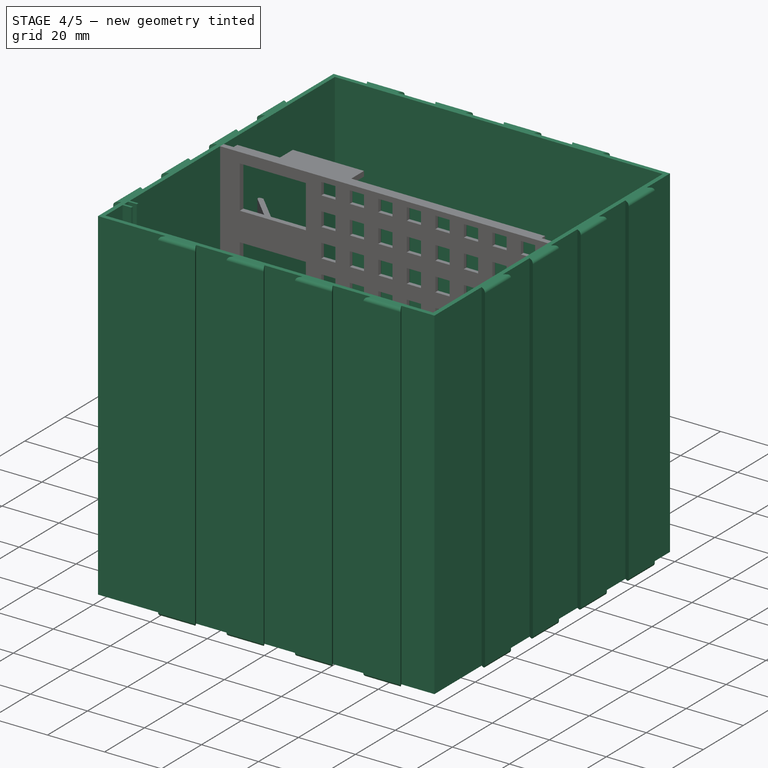
[diagram: stage 4 of 5 — iso view after this stage's code; geometry added in this stage tinted green]
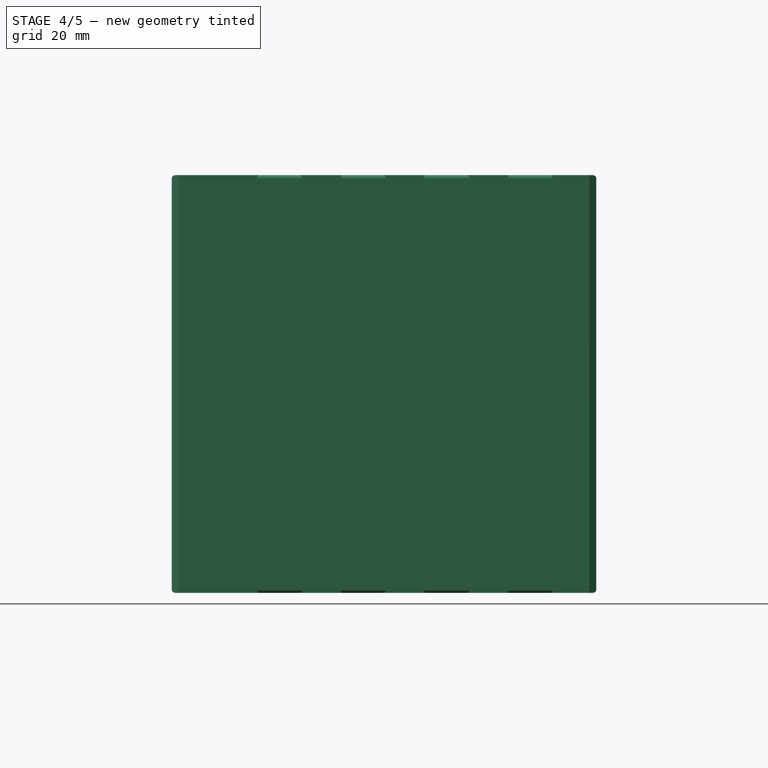
[diagram: stage 4 of 5 — front view after this stage's code; geometry added in this stage tinted green]
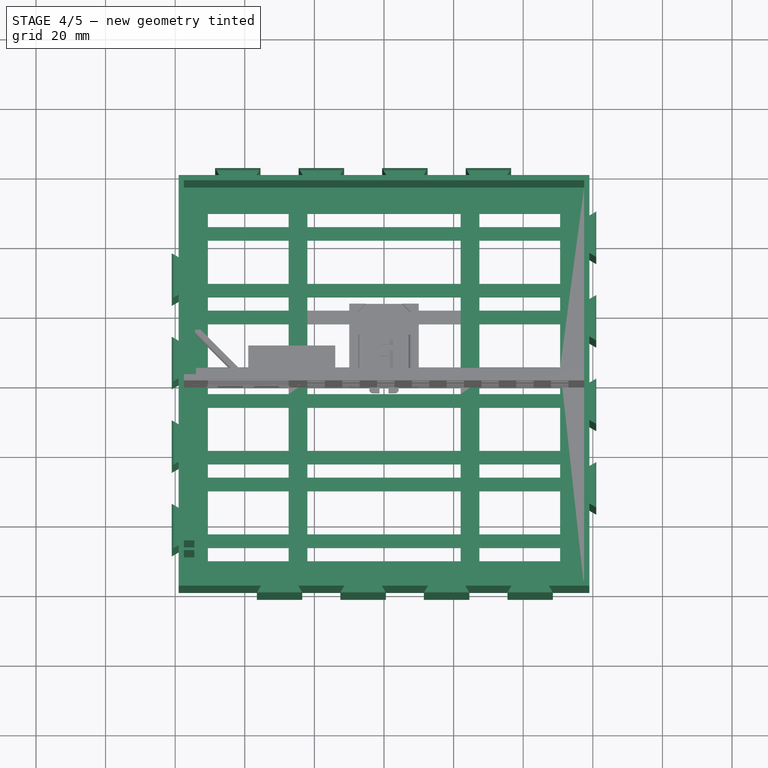
[diagram: stage 4 of 5 — top view after this stage's code; geometry added in this stage tinted green]
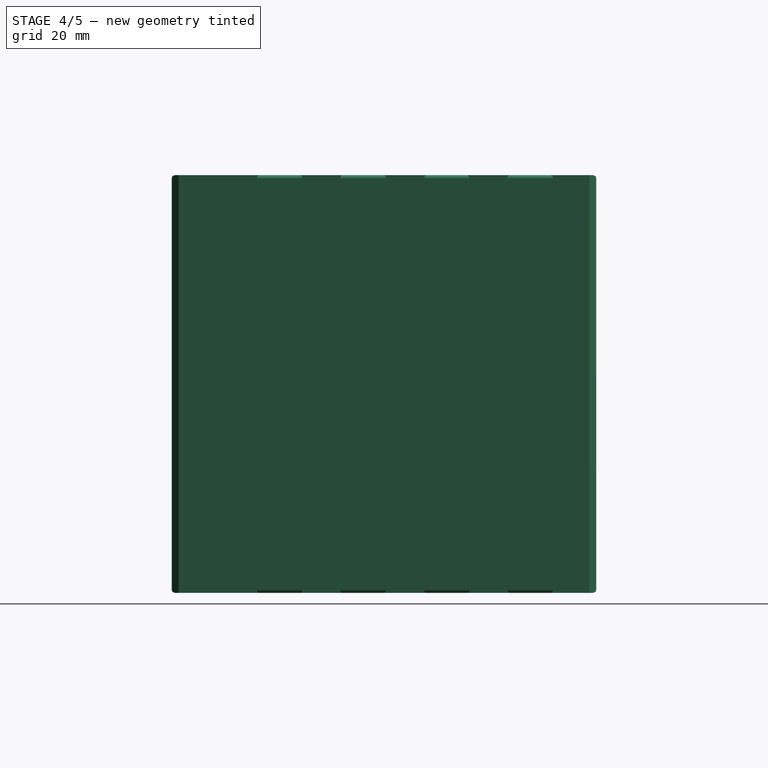
[diagram: stage 4 of 5 — right view after this stage's code; geometry added in this stage tinted green]
FEATURE [Spreadsheet::Sheet] Spreadsheet001  label="Spreadsheet_001"
  cells = A5=slot_y_offset; B5(slot_y_offset)==24mm; D5=board_slot_cutout_y; E5(board_slot_cutout_y)==0mm; A6=inner_thickness; B6(inner_thickness)==1.5mm; D6=total_outer_size; E6(total_outer_size)==B5 * B9 + 2 * (B6 + B7) + 2 * E9; A7=dove_extrusion_y; B7(dove_extrusion)==2mm; D7=grid; E7(grid)==E6 - B7; A8=dove_angle; B8(dove_angle)==60°; D8=total_inner_size_x; E8(total_inner_size_x)==E6 - 2 * (B6 + B7); A9=slot_count; B9(slot_count)=4; D9=empty_space; E9(empty_space)==(B5 - B7 - 2 * B6) / 2; A10=back_thickness; B10(back_thickness)==1.4mm; C10=(maybe we need bit more; A11=cutout_y; B11(cutout_y)==2mm; D11=dove_wing; E11(dove_wing)==B7 / tan(B8); A12=board_side_supports; B12(board_side_supports)==3mm; D12=dove_outer_shorter; E12(dove_outer_shorter)==(B5 + 2 * E11 - B15) / 2; D13=dove_outer_longer; E13(dove_outer_longer)==(B5 + 2 * E11 + B15) / 2; D14=dove_inner_shorter; E14(dove_inner_shorter)==E12 - 2 * E11; A15=dove_tol; B15(dove_tol)==0.2mm; D15=dove_inner_longer; E15(dove_inner_longer)==E13 - 2 * E11; D17=usb_support; E17(usb_support)==(B20 - B19) / 2 + 1mm; A18=usb_socket_y; B18(usb_socket_y)==12.4mm; A19=usb_socket_x; B19(usb_socket_x)==23.2mm; C19=(This is also a bit tight, maybe move it out a bit); D19=base_board_x; E19(base_board_x)==E8 + E5 * 2; F19=Normally "E8 + E5 * 2" but may change for test prints; A20=usb_total_x; B20(usb_total_x)==29mm; D20=base_board_y; E20(base_board_y)==B22 - B10; F20=Normally "B22 - B10" but may be different for test prints; D21=base_board_z; E21(base_board_z)==B11 - 0.2mm; A22=total_z; B22(total_z)==E7; C22=Normally "E6" to stay with the grid but changes with test prints; D23=center_of_left_usb_x; E23(center_of_left_usb_x)==E19 / 2 - E17 - B19 / 2 - B12; A25=top_usb_clip_size_x; B25(top_usb_clip_size_x)==1.6mm; D25=usb_case_cutout_z; E25(usb_case_cutout_z)==B34 * 0.6; A26=top_usb_clip_size_y; B26(top_usb_clip_size_y)==15mm; A27=top_usb_total_x; B27(top_usb_total_x)==24mm; C27=Must be more than the biggest usb case; A28=top_usb_clip_base_thickness; B28(top_usb_clip_base_thickness)==1.6mm; D28=board_grid_x_count; E28(board_grid_x_count)==trunc((E8 - B20) / B51 / 2); D29=board_grid_y_count; E29(board_grid_y_count)==trunc(B22 / B51 / 2); G29=usb_0; H29=sc-2amk001f; A30=usb_case_x; B30(usb_case_x)==15.2mm; G30==15.35mm; H30==15.2mm; A31=usb_case_y; B31(usb_case_big_y)==19mm; D31=pcb_board_z; E31(pcb_board_z)==1.6mm; G31==19.4mm; H31==19mm; A32=usb_case_smaller_x; B32(usb_case_smaller_x)==10.4mm; D32=pcb_standoff_z; E32(pcb_standoff_z)==9mm; G32==11.5mm; H32==10.4mm; A33=usb_case_transition_size_y; B33(usb_case_transition_size_y)==2.4mm; G33==3mm; H33==2.4mm; A34=usb_case_z; B34(usb_case_z)==8.1mm; G34==7.9mm; H34==8.1mm; A37=usb_plug_z; B37(usb_plug_z)==4.5mm; A38=usb_plug_x; B38(usb_plug_x)==12mm; A39=usb_plug_gap_y; B39(usb_plug_gap_y)==2.65mm; A40=usb_female_insert_y; B40(usb_female_insert_y)==4.35mm; A42=usb_top_clip_overhang_x; B42(usb_top_clip_overhang_x)==1.6mm; A43=usb_top_clip_overhang_z; B43(usb_top_clip_overhang_z)==1.6mm; A44=usb_top_clip_deflection_x; B44(usb_top_clip_deflection_x)==0.1mm; A45=usb_top_clip_tol_y; B45(usb_top_clip_tol_y)==0.1mm; A46=usb_top_clip_tol_x; B46(usb_top_clip_tol_x)==0.3mm; A48=usb_bunny_thickness; B48(usb_spring_thickness)==0.8mm; A49=usb_min_case_thickness; B49(usb_min_case_thickness)==1mm; A51=board_holder_grid; B51(board_holder_grid)==5mm; D53=material_saver_count; E53(material_saver_count)==trunc((B22 - 10mm - B26) / B26) / 2
FEATURE [Sketcher::SketchObject] Sketch012  label="Sketch_outer_body"
  FullyConstrained = true
  MapMode = 5
  Support = -> [XY_Plane001]
  expr: Constraints[10] = Spreadsheet001.total_inner_size_x + 2 * Spreadsheet001.inner_thickness
  sketch-geometry (5):
    g0: LineSegment StartX=-59 StartY=59 StartZ=0 EndX=-59 EndY=-59 EndZ=0
    g1: LineSegment StartX=-59 StartY=-59 StartZ=0 EndX=59 EndY=-59 EndZ=0
    g2: LineSegment StartX=59 StartY=-59 StartZ=0 EndX=59 EndY=59 EndZ=0
    g3: LineSegment StartX=59 StartY=59 StartZ=0 EndX=-59 EndY=59 EndZ=0
    g4: GeomPoint X=2e-16 Y=2e-16 Z=0
  constraints (12):
    c: Coincident(g0,g1)
    c: Coincident(g1,g2)
    c: Coincident(g2,g3)
    c: Coincident(g3,g0)
    c: Horizontal(g1)
    c: Horizontal(g3)
    c: Vertical(g0)
    c: Vertical(g2)
    c: Symmetric(g1,g0,g4)
    c: Coincident(g4,g-1)
    c: DistanceX(g3,g3) = 118
    c: Equal(g0,g3)
FEATURE [PartDesign::Pad] Pad008  label="Pad_ouside_body"
  Direction = (0,0,1)
  Length = 120
  Length2 = 10
  Profile = -> Sketch012
  ReferenceAxis = -> Sketch012 [N_Axis]
  Type = 0
  expr: Length = Spreadsheet001.total_z
FEATURE [Sketcher::SketchObject] Sketch011  label="Sketch_inside_body"
  FullyConstrained = true
  MapMode = 5
  Placement = pos=(0,0,120) rot=(0,0,1;0rad)
  Support = -> [Pad008]
  expr: Constraints[10] = Spreadsheet001.total_inner_size_x
  expr: Constraints[11] = Spreadsheet001.total_inner_size_x + 2 * Spreadsheet001.board_slot_cutout_y
  sketch-geometry (5):
    g0: LineSegment StartX=-57.5 StartY=57.5 StartZ=0 EndX=-57.5 EndY=-57.5 EndZ=0
    g1: LineSegment StartX=-57.5 StartY=-57.5 StartZ=0 EndX=57.5 EndY=-57.5 EndZ=0
    g2: LineSegment StartX=57.5 StartY=-57.5 StartZ=0 EndX=57.5 EndY=57.5 EndZ=0
    g3: LineSegment StartX=57.5 StartY=57.5 StartZ=0 EndX=-57.5 EndY=57.5 EndZ=0
    g4: GeomPoint X=0 Y=0 Z=0
  constraints (12):
    c: Coincident(g0,g1)
    c: Coincident(g1,g2)
    c: Coincident(g2,g3)
    c: Coincident(g3,g0)
    c: Horizontal(g1)
    c: Horizontal(g3)
    c: Vertical(g0)
    c: Vertical(g2)
    c: Symmetric(g1,g0,g4)
    c: Coincident(g4,g-1)
    c: DistanceX(g3,g3) = 115
    c: DistanceY(g0,g0) = 115
FEATURE [PartDesign::Pocket] Pocket003  label="Pocket_inner_body"
  BaseFeature = -> Pad008
  Direction = (0,0,-1)
  Length = 118.6
  Length2 = 5
  Profile = -> Sketch011
  ReferenceAxis = -> Sketch011 [N_Axis]
  Type = 0
  expr: Length = Spreadsheet001.total_z - Spreadsheet001.back_thickness
FEATURE [Sketcher::SketchObject] Sketch013  label="Sketch_left_bottom_dove"
  FullyConstrained = true
  MapMode = 5
  Support = -> [XY_Plane001]
  expr: Constraints[11] = Spreadsheet001.total_inner_size_x / 2 + Spreadsheet001.inner_thickness
  expr: Constraints[12] = Spreadsheet001.slot_y_offset * (Spreadsheet001.slot_count / 2 - 0.25)
  expr: Constraints[6] = Spreadsheet001.dove_outer_shorter
  expr: Constraints[7] = Spreadsheet001.dove_angle
  expr: Constraints[8] = Spreadsheet001.dove_angle
  expr: Constraints[9] = Spreadsheet001.dove_extrusion
  sketch-geometry (5):
    g0: LineSegment StartX=-59 StartY=-36.6274 StartZ=0 EndX=-59 EndY=-47.3726 EndZ=0
    g1: LineSegment StartX=-59 StartY=-47.3726 StartZ=0 EndX=-61 EndY=-48.5274 EndZ=0
    g2: LineSegment StartX=-61 StartY=-48.5274 StartZ=0 EndX=-61 EndY=-35.4726 EndZ=0
    g3: LineSegment StartX=-61 StartY=-35.4726 StartZ=0 EndX=-59 EndY=-36.6274 EndZ=0
    g4: GeomPoint X=-59 Y=-42 Z=0
  constraints (13):
    c: Vertical(g0)
    c: Coincident(g1,g0)
    c: Coincident(g2,g1)
    c: Vertical(g2)
    c: Coincident(g3,g0)
    c: Coincident(g3,g2)
    c: DistanceY(g2,g2) = 13.0547
    c: Angle(g1,g2) = 1.0472
    c: Angle(g2,g3) = 1.0472
    c: DistanceX(g1,g0) = 2
    c: Symmetric(g0,g0,g4)
    c: DistanceX(g4,g-1) = 59
    c: DistanceY(g4,g-1) = 42
FEATURE [PartDesign::Pad] Pad009  label="Pad_left_bottom_dove"
  BaseFeature = -> Pocket003
  Direction = (0,0,1)
  Length = 120
  Length2 = 10
  Profile = -> Sketch013
  ReferenceAxis = -> Sketch013 [N_Axis]
  Type = 0
  expr: Length = Spreadsheet001.total_z
FEATURE [PartDesign::LinearPattern] LinearPattern007
  Direction = -> Sketch013 [V_Axis]
  Length = 72
  Occurrences = 4
  expr: Length = Spreadsheet001.slot_y_offset * (Spreadsheet001.slot_count - 1)
  expr: Occurrences = Spreadsheet001.slot_count
FEATURE [PartDesign::PolarPattern] PolarPattern
  Angle = 360
  Axis = -> Z_Axis001
  Occurrences = 4
FEATURE [Sketcher::SketchObject] Sketch014  label="Sketch_bottom_left_usb_cutout"
  FullyConstrained = true
  MapMode = 5
  Support = -> [XY_Plane001]
  expr: Constraints[10] = Spreadsheet001.usb_socket_x
  expr: Constraints[11] = Spreadsheet001.slot_y_offset * Spreadsheet001.slot_count / 2 - Spreadsheet001.slot_y_offset / 2
  expr: Constraints[12] = Spreadsheet001.center_of_left_usb_x
  expr: Constraints[9] = Spreadsheet001.usb_socket_y
  sketch-geometry (5):
    g0: LineSegment StartX=-50.6 StartY=-29.8 StartZ=0 EndX=-50.6 EndY=-42.2 EndZ=0
    g1: LineSegment StartX=-50.6 StartY=-42.2 StartZ=0 EndX=-27.4 EndY=-42.2 EndZ=0
    g2: LineSegment StartX=-27.4 StartY=-42.2 StartZ=0 EndX=-27.4 EndY=-29.8 EndZ=0
    g3: LineSegment StartX=-27.4 StartY=-29.8 StartZ=0 EndX=-50.6 EndY=-29.8 EndZ=0
    g4: GeomPoint X=-39 Y=-36 Z=0
  constraints (13):
    c: Coincident(g0,g1)
    c: Coincident(g1,g2)
    c: Coincident(g2,g3)
    c: Coincident(g3,g0)
    c: Horizontal(g1)
    c: Horizontal(g3)
    c: Vertical(g0)
    c: Vertical(g2)
    c: Symmetric(g1,g0,g4)
    c: DistanceY(g2,g2) = 12.4
    c: DistanceX(g3,g3) = 23.2
    c: DistanceY(g4,g-1) = 36
    c: DistanceX(g4,g-1) = 39
FEATURE [Sketcher::SketchObject] Sketch015  label="Sketch_middle_back_cutout"
  FullyConstrained = true
  MapMode = 5
  Support = -> [XY_Plane001]
  expr: Constraints[10] = Spreadsheet001.usb_socket_y
  expr: Constraints[11] = Spreadsheet001.total_inner_size_x - 2 * (Spreadsheet001.usb_socket_x + Spreadsheet001.usb_support * 2) - Spreadsheet001.board_side_supports * 2 - 3mm
  expr: Constraints[12] = Spreadsheet001.slot_y_offset * Spreadsheet001.slot_count / 2 - Spreadsheet001.slot_y_offset / 2
  sketch-geometry (5):
    g0: LineSegment StartX=-22 StartY=-29.8 StartZ=0 EndX=-22 EndY=-42.2 EndZ=0
    g1: LineSegment StartX=-22 StartY=-42.2 StartZ=0 EndX=22 EndY=-42.2 EndZ=0
    g2: LineSegment StartX=22 StartY=-42.2 StartZ=0 EndX=22 EndY=-29.8 EndZ=0
    g3: LineSegment StartX=22 StartY=-29.8 StartZ=0 EndX=-22 EndY=-29.8 EndZ=0
    g4: GeomPoint X=-1e-16 Y=-36 Z=0
  constraints (13):
    c: Coincident(g0,g1)
    c: Coincident(g1,g2)
    c: Coincident(g2,g3)
    c: Coincident(g3,g0)
    c: Horizontal(g1)
    c: Horizontal(g3)
    c: Vertical(g0)
    c: Vertical(g2)
    c: Symmetric(g1,g0,g4)
    c: PointOnObject(g4,g-2)
    c: DistanceY(g2,g2) = 12.4
    c: DistanceX(g3,g3) = 44
    c: DistanceY(g4,g-1) = 36
FEATURE [Sketcher::SketchObject] Sketch016  label="Sketch_extra_cutout"
  FullyConstrained = true
  MapMode = 5
  Support = -> [XY_Plane001]
  expr: Constraints[10] = Spreadsheet001.usb_socket_x
  expr: Constraints[11] = Spreadsheet001.slot_y_offset * Spreadsheet001.slot_count / 2
  expr: Constraints[24] = Spreadsheet001.total_inner_size_x - 2 * (Spreadsheet001.usb_socket_x + Spreadsheet001.usb_support * 2) - Spreadsheet001.board_side_supports * 2 - 3mm
  expr: Constraints[25] = Spreadsheet001.center_of_left_usb_x
  expr: Constraints[9] = Spreadsheet001.slot_y_offset - Spreadsheet001.usb_socket_y - Spreadsheet001.usb_support * 2
  sketch-geometry (10):
    g0: LineSegment StartX=-50.6 StartY=-46.1 StartZ=0 EndX=-50.6 EndY=-49.9 EndZ=0
    g1: LineSegment StartX=-50.6 StartY=-49.9 StartZ=0 EndX=-27.4 EndY=-49.9 EndZ=0
    g2: LineSegment StartX=-27.4 StartY=-49.9 StartZ=0 EndX=-27.4 EndY=-46.1 EndZ=0
    g3: LineSegment StartX=-27.4 StartY=-46.1 StartZ=0 EndX=-50.6 EndY=-46.1 EndZ=0
    g4: GeomPoint X=-39 Y=-48 Z=0
    g5: LineSegment StartX=-22 StartY=-46.1 StartZ=0 EndX=-22 EndY=-49.9 EndZ=0
    g6: LineSegment StartX=-22 StartY=-49.9 StartZ=0 EndX=22 EndY=-49.9 EndZ=0
    g7: LineSegment StartX=22 StartY=-49.9 StartZ=0 EndX=22 EndY=-46.1 EndZ=0
    g8: LineSegment StartX=22 StartY=-46.1 StartZ=0 EndX=-22 EndY=-46.1 EndZ=0
    g9: GeomPoint X=0 Y=-48 Z=0
  constraints (26):
    c: Coincident(g0,g1)
    c: Coincident(g1,g2)
    c: Coincident(g2,g3)
    c: Coincident(g3,g0)
    c: Horizontal(g1)
    c: Horizontal(g3)
    c: Vertical(g0)
    c: Vertical(g2)
    c: Symmetric(g1,g0,g4)
    c: DistanceY(g2,g2) = 3.8
    c: DistanceX(g1,g1) = 23.2
    c: DistanceY(g4,g-1) = 48
    c: Coincident(g5,g6)
    c: Coincident(g6,g7)
    c: Coincident(g7,g8)
    c: Coincident(g8,g5)
    c: Horizontal(g6)
    c: Horizontal(g8)
    c: Vertical(g5)
    c: Vertical(g7)
    c: Symmetric(g6,g5,g9)
    c: PointOnObject(g9,g-2)
    c: Equal(g5,g2)
    c: Horizontal(g9,g4)
    c: DistanceX(g8,g8) = 44
    c: DistanceX(g4,g-1) = 39
FEATURE [PartDesign::Mirrored] Mirrored
  MirrorPlane = -> Sketch014 [V_Axis]
FEATURE [PartDesign::LinearPattern] LinearPattern008
  Direction = -> Sketch014 [V_Axis]
  Length = 72
  Occurrences = 4
  expr: Length = (Spreadsheet001.slot_count - 1) * Spreadsheet001.slot_y_offset
  expr: Occurrences = Spreadsheet001.slot_count
FEATURE [PartDesign::Fillet] Fillet003  label="Fillet_left_bottom_dove"
  Base = -> Pad009 [Edge29,Edge24]
  BaseFeature = -> Pad009
  Radius = 1
  SupportTransform = false
  UseAllEdges = false
FEATURE [PartDesign::MultiTransform] MultiTransform002  label="MultiTransform_all_doves"
  BaseFeature = -> Fillet003
  Originals = -> [Pad009,Fillet003]
  Transformations = -> [LinearPattern007,PolarPattern]
FEATURE [PartDesign::Pocket] Pocket004  label="Pocket_bottom_left_usb_cutout"
  BaseFeature = -> MultiTransform002
  Direction = (0,0,-1)
  Length = 5
  Length2 = 5
  Profile = -> Sketch014
  ReferenceAxis = -> Sketch014 [N_Axis]
  Reversed = true
  Type = 1
FEATURE [PartDesign::Pocket] Pocket005  label="Pocket_middle_back_cutout"
  BaseFeature = -> Pocket004
  Direction = (0,0,-1)
  Length = 5
  Length2 = 5
  Profile = -> Sketch015
  ReferenceAxis = -> Sketch015 [N_Axis]
  Reversed = true
  Type = 1
FEATURE [PartDesign::Pocket] Pocket006  label="Pocket_extra_cutout"
  BaseFeature = -> Pocket005
  Direction = (0,0,-1)
  Length = 5
  Length2 = 5
  Profile = -> Sketch016
  ReferenceAxis = -> Sketch016 [N_Axis]
  Reversed = true
  Type = 1
FEATURE [Sketcher::SketchObject] Sketch017  label="Sketch_bottom_left_board_holder"
  FullyConstrained = true
  MapMode = 5
  Support = -> [XY_Plane001]
  expr: Constraints[18] = Spreadsheet001.cutout_y
  expr: Constraints[19] = Spreadsheet001.slot_count / 2 * Spreadsheet001.slot_y_offset
  expr: Constraints[20] = Spreadsheet001.total_inner_size_x / 2
  expr: Constraints[22] = Spreadsheet001.board_side_supports
  sketch-geometry (8):
    g0: LineSegment StartX=-57.5 StartY=-46 StartZ=0 EndX=-54.5 EndY=-46 EndZ=0
    g1: LineSegment StartX=-54.5 StartY=-46 StartZ=0 EndX=-54.5 EndY=-45.2 EndZ=0
    g2: LineSegment StartX=-54.5 StartY=-45.2 StartZ=0 EndX=-57.5 EndY=-45.2 EndZ=0
    g3: LineSegment StartX=-57.5 StartY=-45.2 StartZ=0 EndX=-57.5 EndY=-46 EndZ=0
    g4: LineSegment StartX=-57.5 StartY=-48 StartZ=0 EndX=-54.5 EndY=-48 EndZ=0
    g5: LineSegment StartX=-54.5 StartY=-48 StartZ=0 EndX=-54.5 EndY=-48.8 EndZ=0
    g6: LineSegment StartX=-54.5 StartY=-48.8 StartZ=0 EndX=-57.5 EndY=-48.8 EndZ=0
    g7: LineSegment StartX=-57.5 StartY=-48.8 StartZ=0 EndX=-57.5 EndY=-48 EndZ=0
  constraints (24):
    c: Coincident(g0,g1)
    c: Coincident(g1,g2)
    c: Coincident(g2,g3)
    c: Coincident(g3,g0)
    c: Horizontal(g0)
    c: Horizontal(g2)
    c: Vertical(g1)
    c: Vertical(g3)
    c: Coincident(g4,g5)
    c: Coincident(g5,g6)
    c: Coincident(g6,g7)
    c: Coincident(g7,g4)
    c: Horizontal(g4)
    c: Horizontal(g6)
    c: Vertical(g5)
    c: Vertical(g7)
    c: Equal(g4,g2)
    c: Equal(g1,g5)
    c: DistanceY(g4,g0) = 2
    c: DistanceY(g4,g-1) = 48
    c: DistanceX(g4,g-1) = 57.5
    c: DistanceY(g5,g5) = 0.8
    c: DistanceX(g6,g6) = 3
    c: DistanceX(g4,g0) = 0
FEATURE [PartDesign::Mirrored] Mirrored010
  MirrorPlane = -> Sketch017 [V_Axis]
FEATURE [PartDesign::LinearPattern] LinearPattern015
  Direction = -> Sketch017 [V_Axis]
  Length = 72
  Occurrences = 4
  expr: Length = (Spreadsheet001.slot_count - 1) * Spreadsheet001.slot_y_offset
  expr: Occurrences = Spreadsheet001.slot_count
FEATURE [PartDesign::Mirrored] Mirrored011
  MirrorPlane = -> Sketch016 [V_Axis]
FEATURE [PartDesign::LinearPattern] LinearPattern016
  Direction = -> Sketch016 [V_Axis]
  Length = 96
  Occurrences = 5
  expr: Length = Spreadsheet001.slot_count * Spreadsheet001.slot_y_offset
  expr: Occurrences = Spreadsheet001.slot_count + 1
FEATURE [PartDesign::MultiTransform] MultiTransform006  label="MultiTransform_extra_cutout"
  BaseFeature = -> Pocket006
  Originals = -> [Pocket006]
  Transformations = -> [Mirrored011,LinearPattern016]
FEATURE [PartDesign::MultiTransform] MultiTransform003  label="MultiTransform_usb_centered"
  BaseFeature = -> MultiTransform006
  Originals = -> [Pocket004,Pocket005]
  Transformations = -> [Mirrored,LinearPattern008]
FEATURE [PartDesign::Pad] Pad022  label="Pad_bottom_left_board_holder"
  BaseFeature = -> MultiTransform003
  Direction = (0,0,1)
  Length = 120
  Length2 = 10
  Profile = -> Sketch017
  ReferenceAxis = -> Sketch017 [N_Axis]
  Type = 0
  expr: Length = Spreadsheet001.total_z
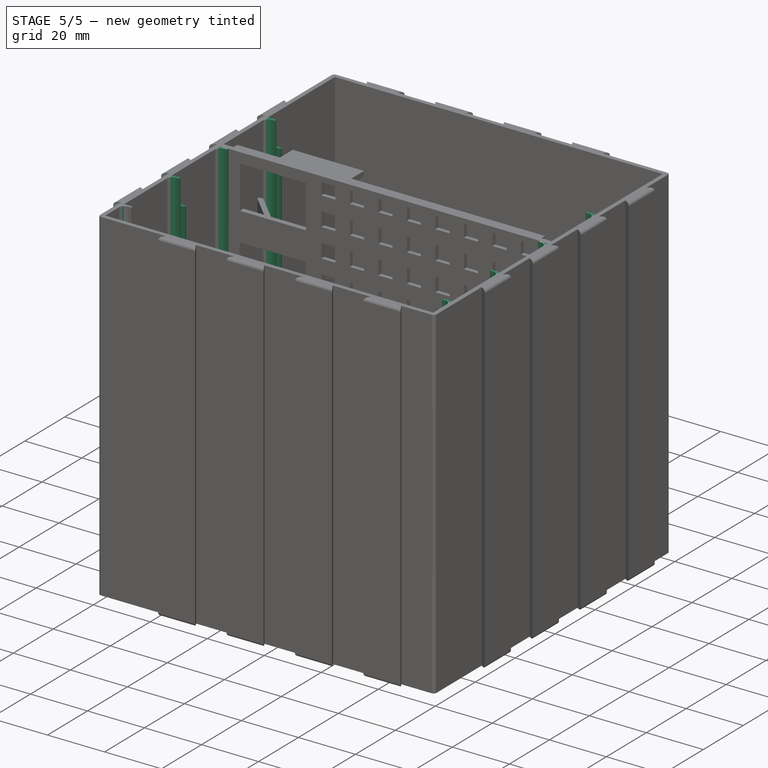
[diagram: stage 5 of 5 — iso view after this stage's code; geometry added in this stage tinted green]
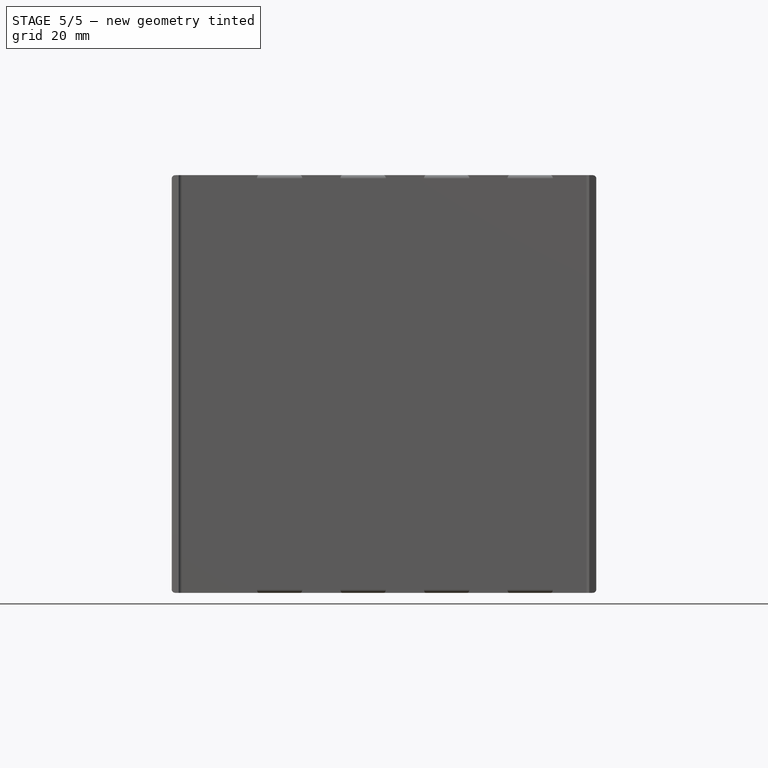
[diagram: stage 5 of 5 — front view after this stage's code; geometry added in this stage tinted green]
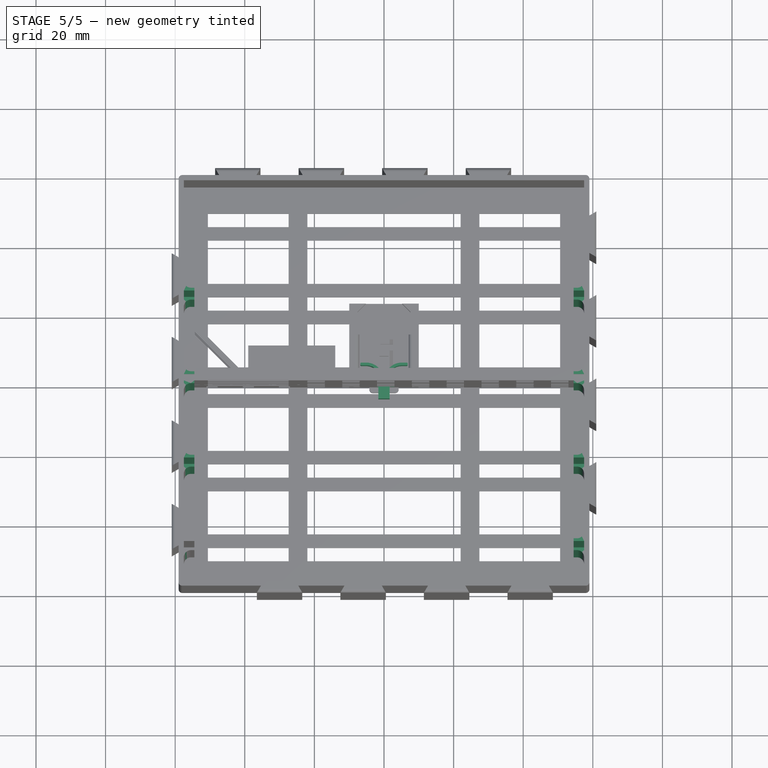
[diagram: stage 5 of 5 — top view after this stage's code; geometry added in this stage tinted green]
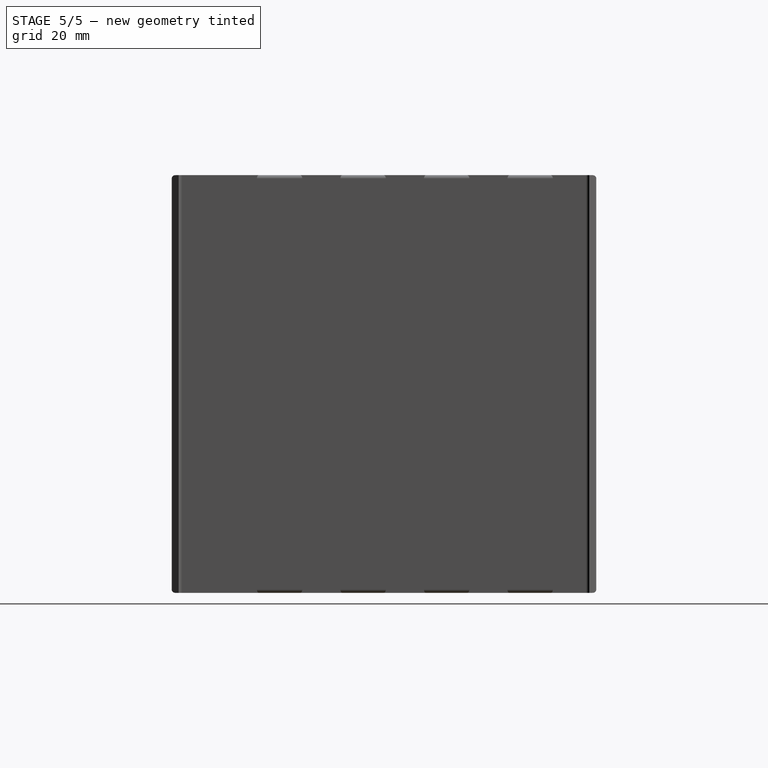
[diagram: stage 5 of 5 — right view after this stage's code; geometry added in this stage tinted green]
FEATURE [Sketcher::SketchObject] Sketch025  label="Sketch_usb_spring_left"
  FullyConstrained = true
  MapMode = 5
  Support = -> [XY_Plane002]
  expr: Constraints[28] = Spreadsheet001.base_board_z
  expr: Constraints[29] = (Spreadsheet001.top_usb_total_x / 2 - (Spreadsheet001.top_usb_clip_size_x + Spreadsheet001.usb_top_clip_tol_x + Spreadsheet001.usb_top_clip_overhang_x)) * 0.8
  expr: Constraints[30] = Spreadsheet001.usb_plug_x / 2
  expr: Constraints[31] = Spreadsheet001.base_board_z
  expr: Constraints[32] = Spreadsheet001.base_board_z * 2
  expr: Constraints[35] = (Spreadsheet001.top_usb_clip_size_x + Spreadsheet001.usb_top_clip_overhang_x) / 2
  expr: Constraints[36] = Spreadsheet001.usb_spring_thickness
  expr: Constraints[37] = Spreadsheet001.slot_y_offset / 2 - Spreadsheet001.usb_plug_z / 2 - Spreadsheet001.base_board_z - Spreadsheet001.usb_min_case_thickness
  sketch-geometry (14):
    g0: LineSegment StartX=-1.6 StartY=0 StartZ=0 EndX=-6 EndY=0 EndZ=0
    g1: LineSegment StartX=-6 StartY=0 StartZ=0 EndX=-6 EndY=1.8 EndZ=0
    g2: LineSegment StartX=-6 StartY=1.8 StartZ=0 EndX=-0.9 EndY=1.8 EndZ=0
    g3: LineSegment StartX=-0.9 StartY=1.8 StartZ=0 EndX=-0.9 EndY=1.9 EndZ=0
    g4: LineSegment StartX=-1.6 StartY=0 StartZ=0 EndX=-1.6 EndY=-1.8 EndZ=0
    g5: LineSegment StartX=-1.6 StartY=-1.8 StartZ=0 EndX=0 EndY=-1.8 EndZ=0
    g6: ArcOfCircle CenterX=-5.15 CenterY=1.9 CenterZ=0 NormalX=0 NormalY=0 NormalZ=1 AngleXU=0 Radius=4.25 StartAngle=-9e-16 EndAngle=1.5708
    g7: LineSegment StartX=-5.15 StartY=6.15 StartZ=0 EndX=-6.8 EndY=6.15 EndZ=0
    g8: LineSegment StartX=-6.8 StartY=6.15 StartZ=0 EndX=-6.8 EndY=6.95 EndZ=0
    g9: LineSegment StartX=-6.8 StartY=6.95 StartZ=0 EndX=-5.15 EndY=6.95 EndZ=0
    g10: LineSegment StartX=0 StartY=-1.8 StartZ=0 EndX=0 EndY=1.8 EndZ=0
    g11: LineSegment StartX=0 StartY=1.8 StartZ=0 EndX=-0.1 EndY=1.8 EndZ=0
    g12: LineSegment StartX=-0.1 StartY=1.8 StartZ=0 EndX=-0.1 EndY=1.9 EndZ=0
    g13: ArcOfCircle CenterX=-5.15 CenterY=1.9 CenterZ=0 NormalX=0 NormalY=0 NormalZ=1 AngleXU=0 Radius=5.05 StartAngle=1e-16 EndAngle=1.5708
  constraints (39):
    c: PointOnObject(g0,g-1)
    c: PointOnObject(g0,g-1)
    c: Coincident(g1,g0)
    c: Vertical(g1)
    c: Horizontal(g2)
    c: Vertical(g3)
    c: Coincident(g4,g0)
    c: Vertical(g4)
    c: Coincident(g5,g4)
    c: PointOnObject(g5,g-2)
    c: Horizontal(g5)
    c: Horizontal(g7)
    c: Tangent(g7,g6) = -1.5708
    c: Coincident(g3,g2)
    c: Coincident(g1,g2)
    c: Tangent(g6,g3) = -1.5708
    c: Coincident(g8,g7)
    c: Vertical(g8)
    c: Horizontal(g9)
    c: Coincident(g10,g5)
    c: PointOnObject(g10,g-2)
    c: Horizontal(g11)
    c: Coincident(g12,g11)
    c: Vertical(g12)
    c: Tangent(g13,g9) = 1.5708
    c: Tangent(g13,g12) = -1.5708
    c: Coincident(g9,g8)
    c: Coincident(g6,g13)
    c: DistanceY(g4,g4) = 1.8
    c: DistanceX(g8,g-1) = 6.8
    c: DistanceX(g1,g-1) = 6
    c: DistanceY(g1,g1) = 1.8
    c: DistanceY(g10,g10) = 3.6
    c: Coincident(g11,g10)
    c: DistanceX(g11,g11) = 0.1
    c: DistanceX(g5,g5) = 1.6
    c: DistanceY(g8,g8) = 0.8
    c: DistanceY(g-1,g8) = 6.95
    c: DistanceY(g2,g6) = 0.1
FEATURE [PartDesign::Pad] Pad013  label="Pad_usb_spring_left"
  Direction = (0,0,1)
  Length = 14.7
  Length2 = 10
  Profile = -> Sketch025
  ReferenceAxis = -> Sketch025 [N_Axis]
  Type = 0
  expr: Length = Spreadsheet001.top_usb_clip_size_y - 0.3mm
FEATURE [PartDesign::Mirrored] Mirrored005  label="Mirrored_usb_spring"
  BaseFeature = -> Pad013
  MirrorPlane = -> Sketch025 [V_Axis]
  Originals = -> [Pad013]
FEATURE [PartDesign::Fillet] Fillet007  label="Fillet_usb_spring"
  Base = -> Mirrored005 [Edge77,Edge78,Edge38,Edge37]
  BaseFeature = -> Mirrored005
  Radius = 0.3
  SupportTransform = false
  UseAllEdges = false
FEATURE [PartDesign::Body] Body004  label="cbc"
  Group = -> [Sketch030,Pad016,Mirrored006,Sketch031,Sketch032,Pad017,Mirrored007,Pocket013,Chamfer,Fillet010]
  Origin = -> Origin004
  Placement = pos=(-19.5,0,3.95) rot=(0,0,1;0rad)
  Tip = -> Fillet010
  expr: .Placement.Base.x = -(Spreadsheet001.center_of_left_usb_x - Spreadsheet001.board_holder_grid / 2 - Spreadsheet001.usb_total_x / 2) + Spreadsheet001.board_holder_grid / 2
  expr: .Placement.Base.z = Spreadsheet001.back_thickness + Spreadsheet001.board_holder_grid / 2 + Spreadsheet001.usb_top_clip_tol_y / 2
FEATURE [PartDesign::AdditiveBox] Box003  label="Box_usb_spring_bottom_clip"
  AttacherType = Attacher::AttachEngine3D
  AttachmentOffset = pos=(-1.6,0,1.8) rot=(0,0,1;0rad)
  BaseFeature = -> Fillet007
  Height = 1.6
  Length = 3.2
  MapMode = 5
  Placement = pos=(-1.6,-1.8,-4e-16) rot=(1,0,0;1.5708rad)
  Support = -> [XZ_Plane002]
  Width = 16.6
  expr: .AttachmentOffset.Base.x = -(Spreadsheet001.top_usb_clip_size_x + Spreadsheet001.usb_top_clip_overhang_x) / 2
  expr: .AttachmentOffset.Base.z = Spreadsheet001.base_board_z
  expr: Height = Spreadsheet001.usb_top_clip_overhang_x
  expr: Length = Spreadsheet001.top_usb_clip_size_x + Spreadsheet001.usb_top_clip_overhang_x
  expr: Width = Spreadsheet001.top_usb_clip_size_y + Spreadsheet001.usb_top_clip_overhang_x
FEATURE [PartDesign::Fillet] Fillet011  label="Fillet_usb_spring_bottom"
  Base = -> Box003 [Edge48]
  BaseFeature = -> Box003
  Placement = pos=(-1.6,-1.8,-4e-16) rot=(1,0,0;1.5708rad)
  Radius = 1.59
  SupportTransform = false
  UseAllEdges = false
  expr: Radius = Spreadsheet001.usb_top_clip_overhang_z - 0.01mm
FEATURE [PartDesign::Fillet] Fillet013  label="Fillet_bottom_left_board_holder"
  Base = -> Pad022 [Edge556,Edge570]
  BaseFeature = -> Pad022
  Radius = 2
  SupportTransform = false
  UseAllEdges = false
FEATURE [Part::Part2DObjectPython] ShapeString  label="ShapeString_inet_mc_ver"  # Draft 2D object (typed FeaturePython)
  FontFile = <path>
  MakeFace = true
  MapMode = 2
  Placement = pos=(54.5,52,0.2) rot=(0,1,0;3.14159rad)
  Size = 3
  String = INET MC v0.0.1
  Tracking = 0
  expr: .Placement.Base.x = Spreadsheet001.total_inner_size_x / 2 - 3mm
  expr: .Placement.Base.y = Spreadsheet001.slot_y_offset * Spreadsheet001.slot_count / 2 + Spreadsheet001.slot_y_offset / 4 - 2mm
FEATURE [Part::Extrusion] Extrude  label="Extrude_inet_mc_ver"
  Base = -> ShapeString
  Dir = (0,0,-1)
  DirMode = 2
  FaceMakerClass = Part::FaceMakerBullseye
  LengthFwd = 0.2
  LengthRev = 0
  Solid = false
  Symmetric = false
FEATURE [Sketcher::SketchObject] Sketch039  label="Sketch_front_cutout"
  FullyConstrained = true
  MapMode = 5
  Placement = pos=(0,0,120) rot=(0,0,1;0rad)
  Support = -> [Fillet013]
  expr: Constraints[10] = Spreadsheet001.total_inner_size_x / 2
  expr: Constraints[11] = Spreadsheet001.slot_count / 2 * Spreadsheet001.slot_y_offset - Spreadsheet001.cutout_y
  expr: Constraints[8] = Spreadsheet001.board_side_supports
  expr: Constraints[9] = 5mm
  sketch-geometry (4):
    g0: LineSegment StartX=-57.5 StartY=-42.3466 StartZ=0 EndX=-54.5 EndY=-42.3466 EndZ=0
    g1: LineSegment StartX=-54.5 StartY=-42.3466 StartZ=0 EndX=-54.5 EndY=-46 EndZ=0
    g2: LineSegment StartX=-54.5 StartY=-46 StartZ=0 EndX=-57.5 EndY=-46 EndZ=0
    g3: LineSegment StartX=-57.5 StartY=-46 StartZ=0 EndX=-57.5 EndY=-42.3466 EndZ=0
  constraints (12):
    c: Coincident(g0,g1)
    c: Coincident(g1,g2)
    c: Coincident(g2,g3)
    c: Coincident(g3,g0)
    c: Horizontal(g0)
    c: Horizontal(g2)
    c: Vertical(g1)
    c: Vertical(g3)
    c: DistanceX(g0,g0) = 3
    c: DistanceY(g1,g1) = 3.6534
    c: DistanceX(g2,g-1) = 57.5
    c: DistanceY(g2,g-1) = 46
FEATURE [PartDesign::Pocket] Pocket015  label="Pocket_front_cutout"
  BaseFeature = -> Fillet013
  Direction = (0,0,-1)
  Length = 10
  Length2 = 5
  Profile = -> Sketch039
  ReferenceAxis = -> Sketch039 [N_Axis]
  Type = 0
FEATURE [PartDesign::MultiTransform] MultiTransform005  label="MultiTransform_board_holder"
  BaseFeature = -> Pocket015
  Originals = -> [Pad022,Fillet013,Pocket015]
  Transformations = -> [Mirrored010,LinearPattern015]
FEATURE [PartDesign::Fillet] Fillet016  label="Fillet_corners"
  Base = -> MultiTransform005 [Edge234,Edge257,Edge309,Edge261]
  BaseFeature = -> MultiTransform005
  Radius = 1
  SupportTransform = false
  UseAllEdges = false
FEATURE [PartDesign::Body] Body001  label="ouside_case"
  Group = -> [Sketch011,Sketch012,Pad008,Pocket003,Sketch013,Pad009,Fillet003,MultiTransform002,LinearPattern007,PolarPattern,Sketch014,Sketch015,Sketch016,Pocket004,Pocket005,Pocket006,MultiTransform006,Mirrored011,LinearPattern016,MultiTransform003,Mirrored,LinearPattern008,Sketch017,Pad022,Fillet013,Pocket015,MultiTransform005,Mirrored010,LinearPattern015,ShapeString,Sketch039,Fillet016]
  Origin = -> Origin001
  Tip = -> Fillet016
FEATURE [Part::Cut] Cut  label="Cut_inet_mc_ver"
  Base = -> Body001
  Tool = -> Extrude
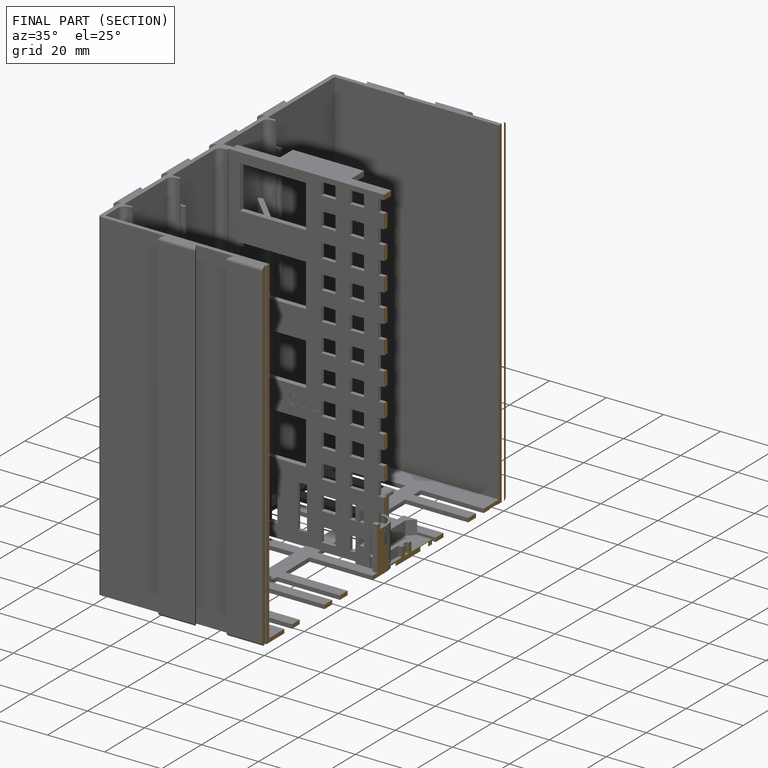
[diagram: finished part — half-section view (interior)]
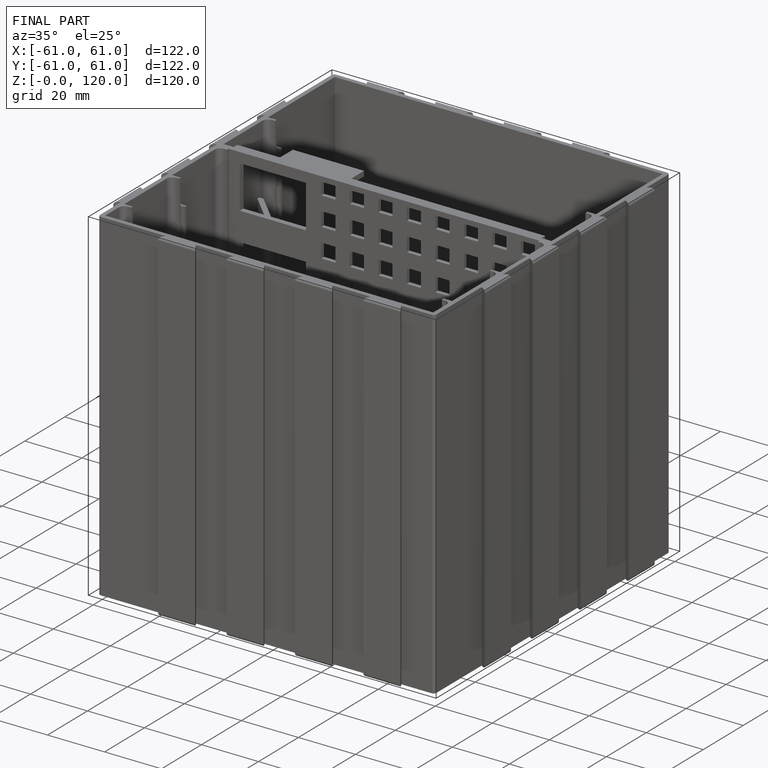
[diagram: finished part — iso view with bounding-box wireframe]
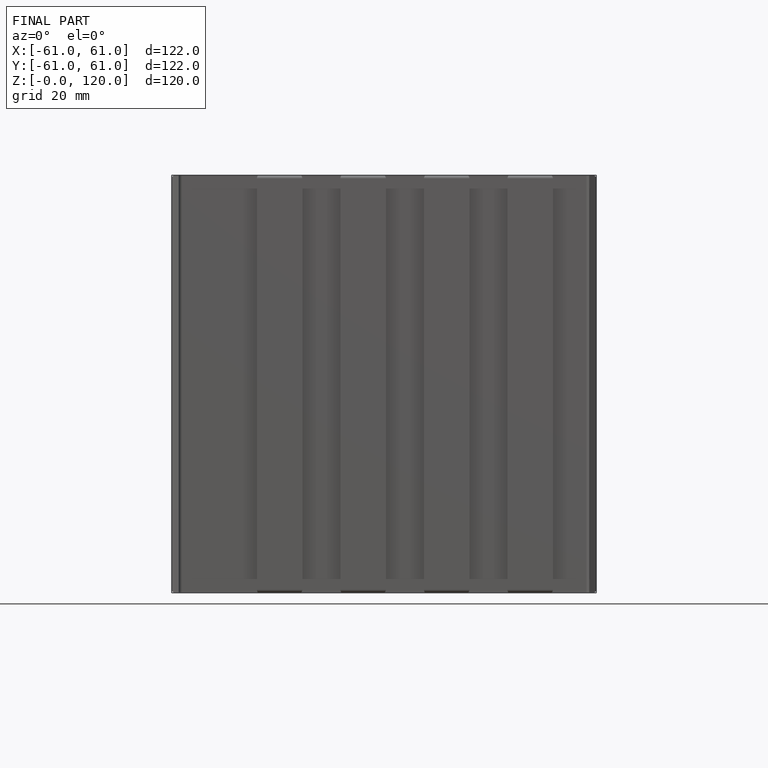
[diagram: finished part — front view with bounding-box wireframe]
